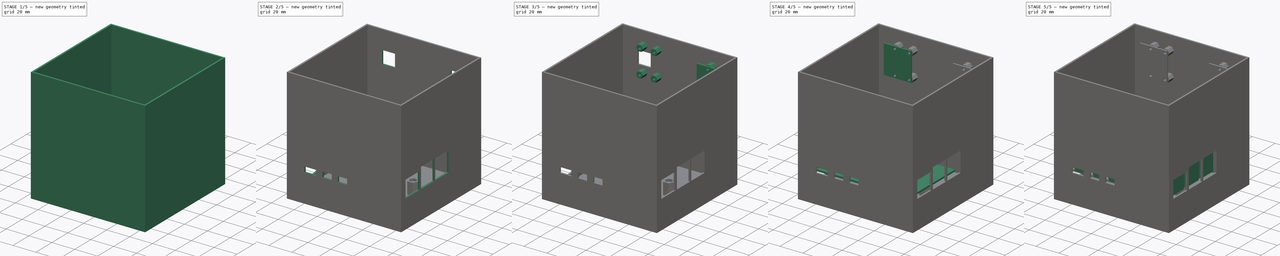
[diagram: build sequence overview — one tinted view per stage of 5, left to right]
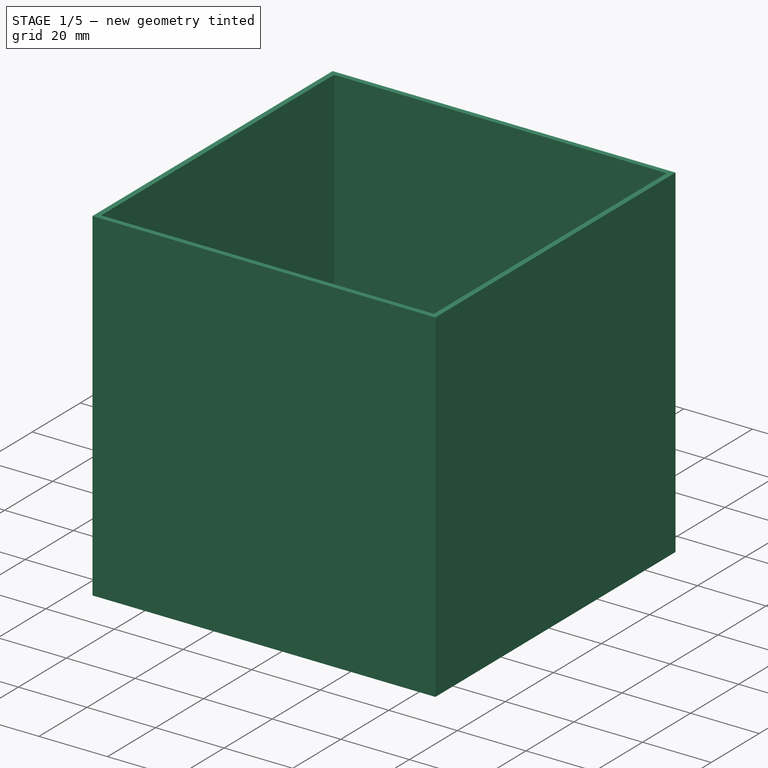
[diagram: stage 1 of 5 — iso view after this stage's code; geometry added in this stage tinted green]
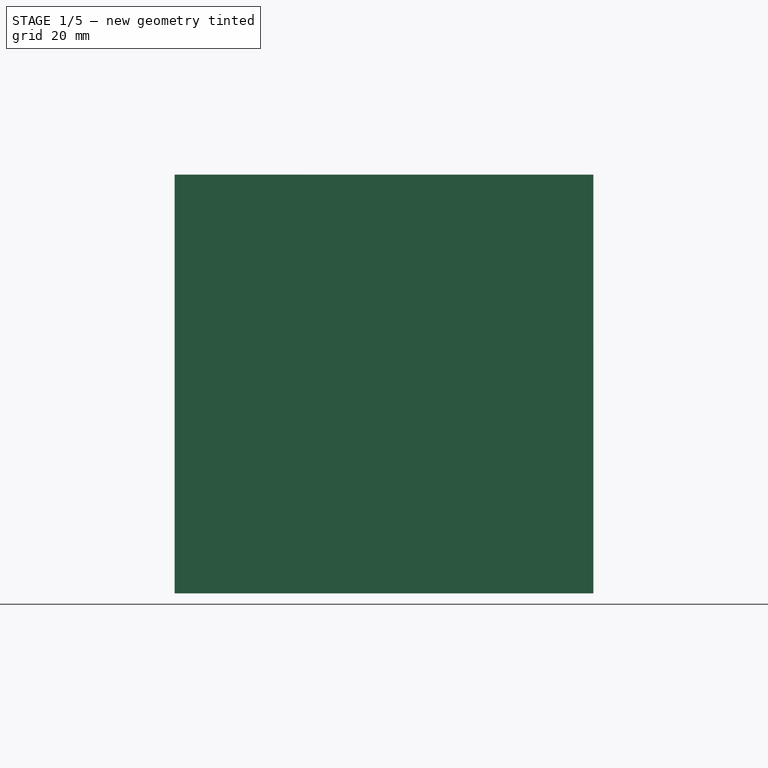
[diagram: stage 1 of 5 — front view after this stage's code; geometry added in this stage tinted green]
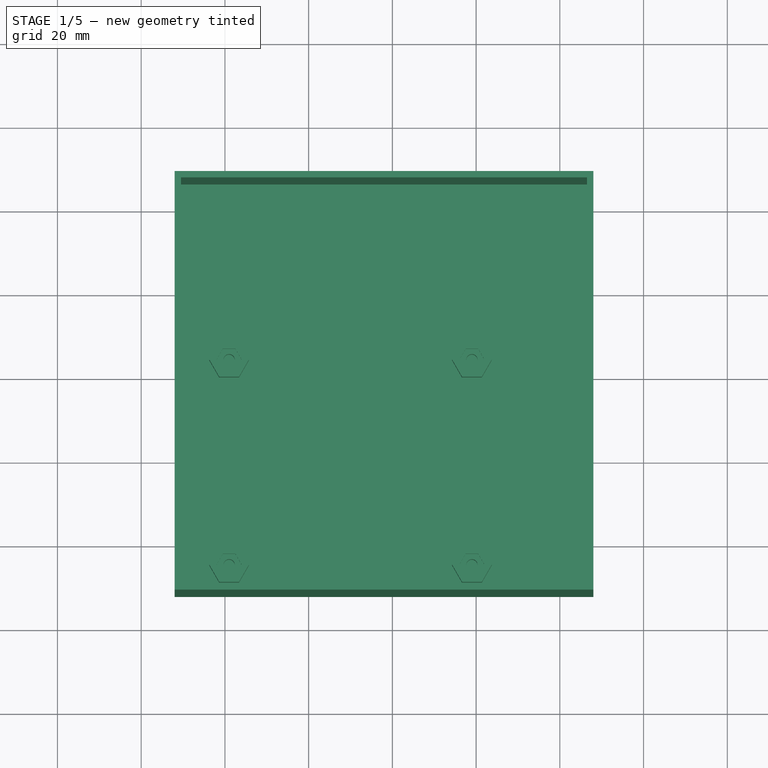
[diagram: stage 1 of 5 — top view after this stage's code; geometry added in this stage tinted green]
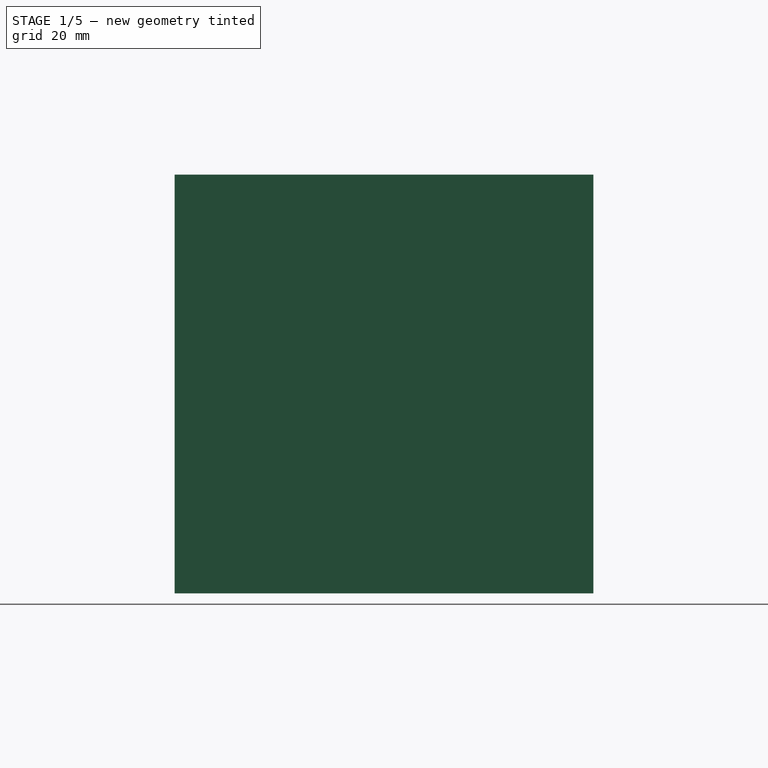
[diagram: stage 1 of 5 — right view after this stage's code; geometry added in this stage tinted green]
FCSTD DOCUMENT  (FreeCAD 0.20R29177 (Git))
Label: PiCase_v1
License: All rights reserved
LicenseURL: http://en.wikipedia.org/wiki/All_rights_reserved
objects: Sketcher::SketchObject×20, PartDesign::Plane×16, PartDesign::Pad×14, PartDesign::Pocket×6, Spreadsheet::Sheet×5, PartDesign::Body×4
note: 80 computed .brp shape members not serialized (recipe doc carries the construction recipe); baked Part::Feature solids carry a one-line shape summary decoded from their .brp

FEATURE [PartDesign::Body] Body002  label="Camera2"
  Group = -> [DatumPlane003,Sketch006,Pad006,DatumPlane006,DatumPlane007,Sketch009,Pad009,Sketch010,Pad010]
  Origin = -> Origin002
  Tip = -> Pad010
FEATURE [Spreadsheet::Sheet] Spreadsheet006  label="fix"
  cells = A1=nut_width; B1(nut_width)=5; A2=nut_height; B2(nut_height)=2; A3=space_height; B3(space_height)=12; A4=space_width; B4(space_width)=4; A5=tol; B5(tol)=0.1; A6=bolt_length; B6(bolt_length)=7; A7=space_length; B7(space_length)=7; A8=nutm2_width; B8(nutm2_width)=4; A9=nutm2_height; B9(nutm2_height)=1.5; A10=boltm2dia; B10(boltm2dia)=2; A11=boltm25dia; B11(boltm25dia)=2.5
FEATURE [PartDesign::Plane] DatumPlane008  label="Plane_case_bottom"
  AttachmentOffset = pos=(0,0,-25.5) rot=(0,0,1;0rad)
  Length = 120
  MapMode = 5
  Placement = pos=(0,0,-25.5) rot=(0,0,1;0rad)
  ResizeMode = 0
  Support = -> [XY_Plane003]
  Width = 120
  expr: .AttachmentOffset.Base.z = -(<<board>>.height + <<case>>.wall + <<case>>.nut_height + <<fix>>.space_height)
FEATURE [Sketcher::SketchObject] Sketch011  label="Sketch_case_bottom"
  FullyConstrained = true
  MapMode = 5
  Placement = pos=(0,0,-25.5) rot=(0,0,1;0rad)
  Support = -> [DatumPlane008]
  expr: Constraints[10] = <<board>>.length
  expr: Constraints[11] = <<board>>.width
  expr: Constraints[20] = <<case>>.length
  expr: Constraints[21] = <<case>>.width
  expr: Constraints[22] = <<board>>.usbc_offset + <<case>>.io_recess + <<case>>.wall
  expr: Constraints[23] = <<board>>.usba_offset + <<case>>.io_recess + <<case>>.wall
  sketch-geometry (9):
    g0: LineSegment StartX=-42.5 StartY=-28 StartZ=0 EndX=-42.5 EndY=28 EndZ=0
    g1: LineSegment StartX=-42.5 StartY=28 StartZ=0 EndX=42.5 EndY=28 EndZ=0
    g2: LineSegment StartX=42.5 StartY=28 StartZ=0 EndX=42.5 EndY=-28 EndZ=0
    g3: LineSegment StartX=42.5 StartY=-28 StartZ=0 EndX=-42.5 EndY=-28 EndZ=0
    g4: GeomPoint X=0 Y=0 Z=0
    g5: LineSegment StartX=-52 StartY=68 StartZ=0 EndX=48 EndY=68 EndZ=0
    g6: LineSegment StartX=48 StartY=68 StartZ=0 EndX=48 EndY=-32 EndZ=0
    g7: LineSegment StartX=48 StartY=-32 StartZ=0 EndX=-52 EndY=-32 EndZ=0
    g8: LineSegment StartX=-52 StartY=-32 StartZ=0 EndX=-52 EndY=68 EndZ=0
  constraints (28):
    c: Coincident(g0,g1)
    c: Coincident(g1,g2)
    c: Coincident(g2,g3)
    c: Coincident(g3,g0)
    c: Horizontal(g1)
    c: Horizontal(g3)
    c: Vertical(g0)
    c: Vertical(g2)
    c: Symmetric(g1,g0,g4)
    c: Coincident(g4,g-1)
    c: DistanceX(g1,g1) = 85
    c: DistanceY(g0,g0) = 56
    c: Coincident(g5,g6)
    c: Coincident(g6,g7)
    c: Coincident(g7,g8)
    c: Coincident(g8,g5)
    c: Horizontal(g5)
    c: Horizontal(g7)
    c: Vertical(g6)
    c: Vertical(g8)
    c: DistanceX(g5,g5) = 100
    c: DistanceY(g8,g8) = 100
    c: DistanceY(g6,g2) = 4
    c: DistanceX(g2,g6) = 5.5
    c: DistanceX(g4,g6) = 48  'orgin_bigio_case'
    c: DistanceY(g7,g4) = 32  'origin_smallio_case'
    c: DistanceX(g7,g4) = 52  'origin_sd_case'
    c: DistanceY(g4,g5) = 68  'origin_lens_cutout'
FEATURE [PartDesign::Pad] Pad011  label="Pad_case_bottom"
  Direction = (0,0,1)
  Length = 100
  Length2 = 10
  Placement = pos=(0,0,-25.5) rot=(0,0,1;0rad)
  Profile = -> Sketch011
  ReferenceAxis = -> Sketch011 [N_Axis]
  Refine = true
  Type = 0
  expr: Length = <<case>>.height
FEATURE [Sketcher::SketchObject] Sketch012  label="Sketch_case_pocket"
  FullyConstrained = true
  MapMode = 5
  Placement = pos=(0,0,74.5) rot=(0,0,1;0rad)
  Support = -> [Pad011]
  expr: Constraints[18] = <<board>>.length
  expr: Constraints[19] = <<case>>.length
  expr: Constraints[20] = <<case>>.width
  expr: Constraints[21] = <<board>>.width
  expr: Constraints[22] = <<board>>.usbc_offset + <<case>>.wall + <<case>>.io_recess
  expr: Constraints[23] = <<board>>.usba_offset + <<case>>.wall + <<case>>.io_recess
  expr: Constraints[32] = <<case>>.length - 2 * <<case>>.wall
  expr: Constraints[33] = <<case>>.width - 2 * <<case>>.wall
  expr: Constraints[34] = <<case>>.wall
  expr: Constraints[35] = <<case>>.wall
  sketch-geometry (13):
    g0: LineSegment StartX=-42.5 StartY=-28 StartZ=0 EndX=-42.5 EndY=28 EndZ=0
    g1: LineSegment StartX=-42.5 StartY=28 StartZ=0 EndX=42.5 EndY=28 EndZ=0
    g2: LineSegment StartX=42.5 StartY=28 StartZ=0 EndX=42.5 EndY=-28 EndZ=0
    g3: LineSegment StartX=42.5 StartY=-28 StartZ=0 EndX=-42.5 EndY=-28 EndZ=0
    g4: GeomPoint X=0 Y=0 Z=0
    g5: LineSegment StartX=-52 StartY=68 StartZ=0 EndX=48 EndY=68 EndZ=0
    g6: LineSegment StartX=48 StartY=68 StartZ=0 EndX=48 EndY=-32 EndZ=0
    g7: LineSegment StartX=48 StartY=-32 StartZ=0 EndX=-52 EndY=-32 EndZ=0
    g8: LineSegment StartX=-52 StartY=-32 StartZ=0 EndX=-52 EndY=68 EndZ=0
    g9: LineSegment StartX=-50.5 StartY=66.5 StartZ=0 EndX=46.5 EndY=66.5 EndZ=0
    g10: LineSegment StartX=46.5 StartY=66.5 StartZ=0 EndX=46.5 EndY=-30.5 EndZ=0
    g11: LineSegment StartX=46.5 StartY=-30.5 StartZ=0 EndX=-50.5 EndY=-30.5 EndZ=0
    g12: LineSegment StartX=-50.5 StartY=-30.5 StartZ=0 EndX=-50.5 EndY=66.5 EndZ=0
  constraints (36):
    c: Coincident(g0,g1)
    c: Coincident(g1,g2)
    c: Coincident(g2,g3)
    c: Coincident(g3,g0)
    c: Horizontal(g1)
    c: Horizontal(g3)
    c: Vertical(g0)
    c: Vertical(g2)
    c: Symmetric(g1,g0,g4)
    c: Coincident(g4,g-1)
    c: Coincident(g5,g6)
    c: Coincident(g6,g7)
    c: Coincident(g7,g8)
    c: Coincident(g8,g5)
    c: Horizontal(g5)
    c: Horizontal(g7)
    c: Vertical(g6)
    c: Vertical(g8)
    c: DistanceX(g1,g1) = 85
    c: DistanceX(g5,g5) = 100
    c: DistanceY(g8,g8) = 100
    c: DistanceY(g0,g0) = 56
    c: DistanceY(g6,g2) = 4
    c: DistanceX(g2,g6) = 5.5
    c: Coincident(g9,g10)
    c: Coincident(g10,g11)
    c: Coincident(g11,g12)
    c: Coincident(g12,g9)
    c: Horizontal(g9)
    c: Horizontal(g11)
    c: Vertical(g10)
    c: Vertical(g12)
    c: DistanceX(g9,g9) = 97
    c: DistanceY(g12,g12) = 97
    c: DistanceX(g5,g9) = 1.5
    c: DistanceY(g9,g5) = 1.5
FEATURE [PartDesign::Pocket] Pocket  label="Pocket_case"
  BaseFeature = -> Pad011
  Direction = (0,0,-1)
  Length = 98.5
  Length2 = 5
  Placement = pos=(0,0,-25.5) rot=(0,0,1;0rad)
  Profile = -> Sketch012
  ReferenceAxis = -> Sketch012 [N_Axis]
  Refine = true
  Type = 0
  expr: Length = <<case>>.height - <<case>>.wall
FEATURE [PartDesign::Plane] DatumPlane009  label="Plane_case_bottom_inside"
  AttachmentOffset = pos=(0,0,-24) rot=(0,0,1;0rad)
  Length = 120
  MapMode = 5
  Placement = pos=(0,0,-24) rot=(0,0,1;0rad)
  ResizeMode = 0
  Support = -> [XY_Plane003]
  Width = 120
  expr: .AttachmentOffset.Base.z = -(<<board>>.height + <<case>>.nut_height + <<fix>>.space_height)
FEATURE [Sketcher::SketchObject] Sketch013  label="Sketch_nut_housing"
  FullyConstrained = true
  MapMode = 5
  Placement = pos=(0,0,-24) rot=(0,0,1;0rad)
  Support = -> [DatumPlane009]
  expr: Constraints[10] = <<board>>.length
  expr: Constraints[111] = <<fix>>.nut_width + 2 * <<case>>.wall + 2 * <<case>>.tol
  expr: Constraints[11] = <<board>>.width
  expr: Constraints[20] = <<board>>.hole_length
  expr: Constraints[21] = <<board>>.hole_width
  expr: Constraints[22] = <<board>>.hole_spacing
  expr: Constraints[23] = <<board>>.hole_spacing
  expr: Constraints[31] = <<board>>.hole_diam
  sketch-geometry (41):
    g0: LineSegment StartX=-42.5 StartY=-28 StartZ=0 EndX=-42.5 EndY=28 EndZ=0
    g1: LineSegment StartX=-42.5 StartY=28 StartZ=0 EndX=42.5 EndY=28 EndZ=0
    g2: LineSegment StartX=42.5 StartY=28 StartZ=0 EndX=42.5 EndY=-28 EndZ=0
    g3: LineSegment StartX=42.5 StartY=-28 StartZ=0 EndX=-42.5 EndY=-28 EndZ=0
    g4: GeomPoint X=0 Y=0 Z=0
    g5: LineSegment StartX=-39 StartY=24.5 StartZ=0 EndX=19 EndY=24.5 EndZ=0
    g6: LineSegment StartX=19 StartY=24.5 StartZ=0 EndX=19 EndY=-24.5 EndZ=0
    g7: LineSegment StartX=19 StartY=-24.5 StartZ=0 EndX=-39 EndY=-24.5 EndZ=0
    g8: LineSegment StartX=-39 StartY=-24.5 StartZ=0 EndX=-39 EndY=24.5 EndZ=0
    g9: Circle CenterX=-39 CenterY=24.5 CenterZ=0 NormalX=0 NormalY=0 NormalZ=1 AngleXU=0 Radius=1.35
    g10: Circle CenterX=19 CenterY=24.5 CenterZ=0 NormalX=0 NormalY=0 NormalZ=1 AngleXU=0 Radius=1.35
    g11: Circle CenterX=19 CenterY=-24.5 CenterZ=0 NormalX=0 NormalY=0 NormalZ=1 AngleXU=0 Radius=1.35
    g12: Circle CenterX=-39 CenterY=-24.5 CenterZ=0 NormalX=0 NormalY=0 NormalZ=1 AngleXU=0 Radius=1.35
    g13: LineSegment StartX=-36.6329 StartY=20.4 StartZ=0 EndX=-34.2657 EndY=24.5 EndZ=0
    g14: LineSegment StartX=-34.2657 StartY=24.5 StartZ=0 EndX=-36.6329 EndY=28.6 EndZ=0
    g15: LineSegment StartX=-36.6329 StartY=28.6 StartZ=0 EndX=-41.3671 EndY=28.6 EndZ=0
    g16: LineSegment StartX=-41.3671 StartY=28.6 StartZ=0 EndX=-43.7343 EndY=24.5 EndZ=0
    g17: LineSegment StartX=-43.7343 StartY=24.5 StartZ=0 EndX=-41.3671 EndY=20.4 EndZ=0
    g18: LineSegment StartX=-41.3671 StartY=20.4 StartZ=0 EndX=-36.6329 EndY=20.4 EndZ=0
    g19: Circle CenterX=-39 CenterY=24.5 CenterZ=0 NormalX=0 NormalY=0 NormalZ=1 AngleXU=0 Radius=4.73427
    g20: LineSegment StartX=16.6329 StartY=20.4 StartZ=0 EndX=21.3671 EndY=20.4 EndZ=0
    g21: LineSegment StartX=21.3671 StartY=20.4 StartZ=0 EndX=23.7343 EndY=24.5 EndZ=0
    g22: LineSegment StartX=23.7343 StartY=24.5 StartZ=0 EndX=21.3671 EndY=28.6 EndZ=0
    g23: LineSegment StartX=21.3671 StartY=28.6 StartZ=0 EndX=16.6329 EndY=28.6 EndZ=0
    g24: LineSegment StartX=16.6329 StartY=28.6 StartZ=0 EndX=14.2657 EndY=24.5 EndZ=0
    g25: LineSegment StartX=14.2657 StartY=24.5 StartZ=0 EndX=16.6329 EndY=20.4 EndZ=0
    g26: Circle CenterX=19 CenterY=24.5 CenterZ=0 NormalX=0 NormalY=0 NormalZ=1 AngleXU=0 Radius=4.73427
    g27: LineSegment StartX=23.7343 StartY=-24.5 StartZ=0 EndX=21.3671 EndY=-20.4 EndZ=0
    g28: LineSegment StartX=21.3671 StartY=-20.4 StartZ=0 EndX=16.6329 EndY=-20.4 EndZ=0
    g29: LineSegment StartX=16.6329 StartY=-20.4 StartZ=0 EndX=14.2657 EndY=-24.5 EndZ=0
    g30: LineSegment StartX=14.2657 StartY=-24.5 StartZ=0 EndX=16.6329 EndY=-28.6 EndZ=0
    g31: LineSegment StartX=16.6329 StartY=-28.6 StartZ=0 EndX=21.3671 EndY=-28.6 EndZ=0
    g32: LineSegment StartX=21.3671 StartY=-28.6 StartZ=0 EndX=23.7343 EndY=-24.5 EndZ=0
    g33: Circle CenterX=19 CenterY=-24.5 CenterZ=0 NormalX=0 NormalY=0 NormalZ=1 AngleXU=0 Radius=4.73427
    g34: LineSegment StartX=-41.3671 StartY=-20.4 StartZ=0 EndX=-43.7343 EndY=-24.5 EndZ=0
    g35: LineSegment StartX=-43.7343 StartY=-24.5 StartZ=0 EndX=-41.3671 EndY=-28.6 EndZ=0
    g36: LineSegment StartX=-41.3671 StartY=-28.6 StartZ=0 EndX=-36.6329 EndY=-28.6 EndZ=0
    g37: LineSegment StartX=-36.6329 StartY=-28.6 StartZ=0 EndX=-34.2657 EndY=-24.5 EndZ=0
    g38: LineSegment StartX=-34.2657 StartY=-24.5 StartZ=0 EndX=-36.6329 EndY=-20.4 EndZ=0
    g39: LineSegment StartX=-36.6329 StartY=-20.4 StartZ=0 EndX=-41.3671 EndY=-20.4 EndZ=0
    g40: Circle CenterX=-39 CenterY=-24.5 CenterZ=0 NormalX=0 NormalY=0 NormalZ=1 AngleXU=0 Radius=4.73427
  constraints (96):
    c: Coincident(g0,g1)
    c: Coincident(g1,g2)
    c: Coincident(g2,g3)
    c: Coincident(g3,g0)
    c: Horizontal(g1)
    c: Horizontal(g3)
    c: Vertical(g0)
    c: Vertical(g2)
    c: Symmetric(g1,g0,g4)
    c: Coincident(g4,g-1)
    c: DistanceX(g1,g1) = 85
    c: DistanceY(g0,g0) = 56
    c: Coincident(g5,g6)
    c: Coincident(g6,g7)
    c: Coincident(g7,g8)
    c: Coincident(g8,g5)
    c: Horizontal(g5)
    c: Horizontal(g7)
    c: Vertical(g6)
    c: Vertical(g8)
    c: DistanceX(g5,g5) = 58
    c: DistanceY(g8,g8) = 49
    c: DistanceX(g0,g5) = 3.5
    c: DistanceY(g5,g0) = 3.5
    c: Coincident(g9,g5)
    c: Coincident(g10,g5)
    c: Coincident(g11,g6)
    c: Coincident(g12,g7)
    c: Equal(g12,g9)
    c: Equal(g12,g10)
    c: Equal(g12,g11)
    c: Diameter(g12) = 2.7
    c: Coincident(g13,g14)
    c: Coincident(g14,g15)
    c: Coincident(g15,g16)
    c: Coincident(g16,g17)
    c: Coincident(g17,g18)
    c: Coincident(g18,g13)
    c: Equal(g13, g14-g18) x5
    c: PointOnObject(g13,g19)
    c: PointOnObject(g14,g19)
    c: PointOnObject(g15,g19)
    c: PointOnObject(g16,g19)
    c: PointOnObject(g17,g19)
    c: PointOnObject(g18,g19)
    c: Coincident(g19,g9)
    c: Coincident(g20,g21)
    c: Coincident(g21,g22)
    c: Coincident(g22,g23)
    c: Coincident(g23,g24)
    c: Coincident(g24,g25)
    c: Coincident(g25,g20)
    c: Equal(g20, g21-g25) x5
    c: PointOnObject(g20,g26)
    c: PointOnObject(g21,g26)
    c: PointOnObject(g22,g26)
    c: PointOnObject(g23,g26)
    c: PointOnObject(g24,g26)
    c: PointOnObject(g25,g26)
    c: Coincident(g26,g10)
    c: Coincident(g27,g28)
    c: Coincident(g28,g29)
    c: Coincident(g29,g30)
    c: Coincident(g30,g31)
    c: Coincident(g31,g32)
    c: Coincident(g32,g27)
    c: Equal(g27, g28-g32) x5
    c: PointOnObject(g27,g33)
    c: PointOnObject(g28,g33)
    c: PointOnObject(g29,g33)
    c: PointOnObject(g30,g33)
    c: PointOnObject(g31,g33)
    c: PointOnObject(g32,g33)
    c: Coincident(g33,g11)
    c: Coincident(g34,g35)
    c: Coincident(g35,g36)
    c: Coincident(g36,g37)
    c: Coincident(g37,g38)
    c: Coincident(g38,g39)
    c: Coincident(g39,g34)
    c: Equal(g34, g35-g39) x5
    c: PointOnObject(g34,g40)
    c: PointOnObject(g35,g40)
    c: PointOnObject(g36,g40)
    c: PointOnObject(g37,g40)
    c: PointOnObject(g38,g40)
    c: PointOnObject(g39,g40)
    c: Coincident(g40,g12)
    c: Equal(g40,g19)
    c: Equal(g19,g26)
    c: Equal(g26,g33)
    c: Horizontal(g39)
    c: Horizontal(g28)
    c: Horizontal(g20)
    c: Horizontal(g18)
    c: DistanceY(g31,g27) = 8.2
FEATURE [PartDesign::Pad] Pad012  label="Pad_nut_housing"
  BaseFeature = -> Pocket
  Direction = (0,0,1)
  Length = 10.5
  Length2 = 10
  Placement = pos=(0,0,-25.5) rot=(0,0,1;0rad)
  Profile = -> Sketch013
  ReferenceAxis = -> Sketch013 [N_Axis]
  Refine = true
  Type = 0
  expr: Length = <<case>>.nut_height
FEATURE [PartDesign::Plane] DatumPlane010  label="Plane_nut_recess"
  AttachmentOffset = pos=(0,0,-13.5) rot=(0,0,1;0rad)
  Length = 120
  MapMode = 5
  Placement = pos=(0,0,-13.5) rot=(0,0,1;0rad)
  ResizeMode = 0
  Support = -> [XY_Plane003]
  Width = 120
  expr: .AttachmentOffset.Base.z = -(<<board>>.height + <<fix>>.space_height)
FEATURE [Sketcher::SketchObject] Sketch014  label="Sketch_nut_recess"
  FullyConstrained = true
  MapMode = 5
  Placement = pos=(0,0,-13.5) rot=(0,0,1;0rad)
  Support = -> [DatumPlane010]
  expr: Constraints[103] = <<fix>>.nut_width + 2 * <<fix>>.tol
  expr: Constraints[18] = <<board>>.hole_spacing
  expr: Constraints[19] = <<board>>.width
  expr: Constraints[20] = <<board>>.hole_width
  expr: Constraints[21] = <<board>>.hole_spacing
  expr: Constraints[22] = <<board>>.length
  expr: Constraints[23] = <<board>>.hole_length
  sketch-geometry (37):
    g0: LineSegment StartX=-42.5 StartY=-28 StartZ=0 EndX=-42.5 EndY=28 EndZ=0
    g1: LineSegment StartX=-42.5 StartY=28 StartZ=0 EndX=42.5 EndY=28 EndZ=0
    g2: LineSegment StartX=42.5 StartY=28 StartZ=0 EndX=42.5 EndY=-28 EndZ=0
    g3: LineSegment StartX=42.5 StartY=-28 StartZ=0 EndX=-42.5 EndY=-28 EndZ=0
    g4: GeomPoint X=0 Y=0 Z=0
    g5: LineSegment StartX=-39 StartY=24.5 StartZ=0 EndX=19 EndY=24.5 EndZ=0
    g6: LineSegment StartX=19 StartY=24.5 StartZ=0 EndX=19 EndY=-24.5 EndZ=0
    g7: LineSegment StartX=19 StartY=-24.5 StartZ=0 EndX=-39 EndY=-24.5 EndZ=0
    g8: LineSegment StartX=-39 StartY=-24.5 StartZ=0 EndX=-39 EndY=24.5 EndZ=0
    g9: LineSegment StartX=-35.9978 StartY=24.5 StartZ=0 EndX=-37.4989 EndY=27.1 EndZ=0
    g10: LineSegment StartX=-37.4989 StartY=27.1 StartZ=0 EndX=-40.5011 EndY=27.1 EndZ=0
    g11: LineSegment StartX=-40.5011 StartY=27.1 StartZ=0 EndX=-42.0022 EndY=24.5 EndZ=0
    g12: LineSegment StartX=-42.0022 StartY=24.5 StartZ=0 EndX=-40.5011 EndY=21.9 EndZ=0
    g13: LineSegment StartX=-40.5011 StartY=21.9 StartZ=0 EndX=-37.4989 EndY=21.9 EndZ=0
    g14: LineSegment StartX=-37.4989 StartY=21.9 StartZ=0 EndX=-35.9978 EndY=24.5 EndZ=0
    g15: Circle CenterX=-39 CenterY=24.5 CenterZ=0 NormalX=0 NormalY=0 NormalZ=1 AngleXU=0 Radius=3.00222
    g16: LineSegment StartX=22.0022 StartY=24.5 StartZ=0 EndX=20.5011 EndY=27.1 EndZ=0
    g17: LineSegment StartX=20.5011 StartY=27.1 StartZ=0 EndX=17.4989 EndY=27.1 EndZ=0
    g18: LineSegment StartX=17.4989 StartY=27.1 StartZ=0 EndX=15.9978 EndY=24.5 EndZ=0
    g19: LineSegment StartX=15.9978 StartY=24.5 StartZ=0 EndX=17.4989 EndY=21.9 EndZ=0
    g20: LineSegment StartX=17.4989 StartY=21.9 StartZ=0 EndX=20.5011 EndY=21.9 EndZ=0
    g21: LineSegment StartX=20.5011 StartY=21.9 StartZ=0 EndX=22.0022 EndY=24.5 EndZ=0
    g22: Circle CenterX=19 CenterY=24.5 CenterZ=0 NormalX=0 NormalY=0 NormalZ=1 AngleXU=0 Radius=3.00222
    g23: LineSegment StartX=-35.9978 StartY=-24.5 StartZ=0 EndX=-37.4989 EndY=-21.9 EndZ=0
    g24: LineSegment StartX=-37.4989 StartY=-21.9 StartZ=0 EndX=-40.5011 EndY=-21.9 EndZ=0
    g25: LineSegment StartX=-40.5011 StartY=-21.9 StartZ=0 EndX=-42.0022 EndY=-24.5 EndZ=0
    g26: LineSegment StartX=-42.0022 StartY=-24.5 StartZ=0 EndX=-40.5011 EndY=-27.1 EndZ=0
    g27: LineSegment StartX=-40.5011 StartY=-27.1 StartZ=0 EndX=-37.4989 EndY=-27.1 EndZ=0
    g28: LineSegment StartX=-37.4989 StartY=-27.1 StartZ=0 EndX=-35.9978 EndY=-24.5 EndZ=0
    g29: Circle CenterX=-39 CenterY=-24.5 CenterZ=0 NormalX=0 NormalY=0 NormalZ=1 AngleXU=0 Radius=3.00222
    g30: LineSegment StartX=17.4989 StartY=-21.9 StartZ=0 EndX=15.9978 EndY=-24.5 EndZ=0
    g31: LineSegment StartX=15.9978 StartY=-24.5 StartZ=0 EndX=17.4989 EndY=-27.1 EndZ=0
    g32: LineSegment StartX=17.4989 StartY=-27.1 StartZ=0 EndX=20.5011 EndY=-27.1 EndZ=0
    g33: LineSegment StartX=20.5011 StartY=-27.1 StartZ=0 EndX=22.0022 EndY=-24.5 EndZ=0
    g34: LineSegment StartX=22.0022 StartY=-24.5 StartZ=0 EndX=20.5011 EndY=-21.9 EndZ=0
    g35: LineSegment StartX=20.5011 StartY=-21.9 StartZ=0 EndX=17.4989 EndY=-21.9 EndZ=0
    g36: Circle CenterX=19 CenterY=-24.5 CenterZ=0 NormalX=0 NormalY=0 NormalZ=1 AngleXU=0 Radius=3.00222
  constraints (88):
    c: Coincident(g0,g1)
    c: Coincident(g1,g2)
    c: Coincident(g2,g3)
    c: Coincident(g3,g0)
    c: Horizontal(g1)
    c: Horizontal(g3)
    c: Vertical(g0)
    c: Vertical(g2)
    c: Symmetric(g1,g0,g4)
    c: Coincident(g4,g-1)
    c: Coincident(g5,g6)
    c: Coincident(g6,g7)
    c: Coincident(g7,g8)
    c: Coincident(g8,g5)
    c: Horizontal(g5)
    c: Horizontal(g7)
    c: Vertical(g6)
    c: Vertical(g8)
    c: DistanceY(g5,g0) = 3.5
    c: DistanceY(g0,g0) = 56
    c: DistanceY(g8,g8) = 49
    c: DistanceX(g0,g5) = 3.5
    c: DistanceX(g1,g1) = 85
    c: DistanceX(g5,g5) = 58
    c: Coincident(g9,g10)
    c: Coincident(g10,g11)
    c: Coincident(g11,g12)
    c: Coincident(g12,g13)
    c: Coincident(g13,g14)
    c: Coincident(g14,g9)
    c: Equal(g9, g10-g14) x5
    c: PointOnObject(g9,g15)
    c: PointOnObject(g10,g15)
    c: PointOnObject(g11,g15)
    c: PointOnObject(g12,g15)
    c: PointOnObject(g13,g15)
    c: PointOnObject(g14,g15)
    c: Coincident(g15,g5)
    c: Coincident(g16,g17)
    c: Coincident(g17,g18)
    c: Coincident(g18,g19)
    c: Coincident(g19,g20)
    c: Coincident(g20,g21)
    c: Coincident(g21,g16)
    c: Equal(g16, g17-g21) x5
    c: PointOnObject(g16,g22)
    c: PointOnObject(g17,g22)
    c: PointOnObject(g18,g22)
    c: PointOnObject(g19,g22)
    c: PointOnObject(g20,g22)
    c: PointOnObject(g21,g22)
    c: Coincident(g22,g5)
    c: Coincident(g23,g24)
    c: Coincident(g24,g25)
    c: Coincident(g25,g26)
    c: Coincident(g26,g27)
    c: Coincident(g27,g28)
    c: Coincident(g28,g23)
    c: Equal(g23, g24-g28) x5
    c: PointOnObject(g23,g29)
    c: PointOnObject(g24,g29)
    c: PointOnObject(g25,g29)
    c: PointOnObject(g26,g29)
    c: PointOnObject(g27,g29)
    c: PointOnObject(g28,g29)
    c: Coincident(g29,g7)
    c: Coincident(g30,g31)
    c: Coincident(g31,g32)
    c: Coincident(g32,g33)
    c: Coincident(g33,g34)
    c: Coincident(g34,g35)
    c: Coincident(g35,g30)
    c: Equal(g30, g31-g35) x5
    c: PointOnObject(g30,g36)
    c: PointOnObject(g31,g36)
    c: PointOnObject(g32,g36)
    c: PointOnObject(g33,g36)
    c: PointOnObject(g34,g36)
    c: PointOnObject(g35,g36)
    c: Coincident(g36,g6)
    c: Equal(g36,g29)
    c: Equal(g29,g15)
    c: Equal(g15,g22)
    c: Horizontal(g20)
    c: Horizontal(g13)
    c: Horizontal(g32)
    c: Horizontal(g27)
    c: DistanceY(g26,g24) = 5.2
FEATURE [PartDesign::Pocket] Pocket001  label="Pocket_nut_recess"
  BaseFeature = -> Pad012
  Direction = (0,0,-1)
  Length = 2.2
  Length2 = 5
  Placement = pos=(0,0,-25.5) rot=(0,0,1;0rad)
  Profile = -> Sketch014
  ReferenceAxis = -> Sketch014 [N_Axis]
  Refine = true
  Type = 0
  expr: Length = <<fix>>.nut_height + 2 * <<fix>>.tol
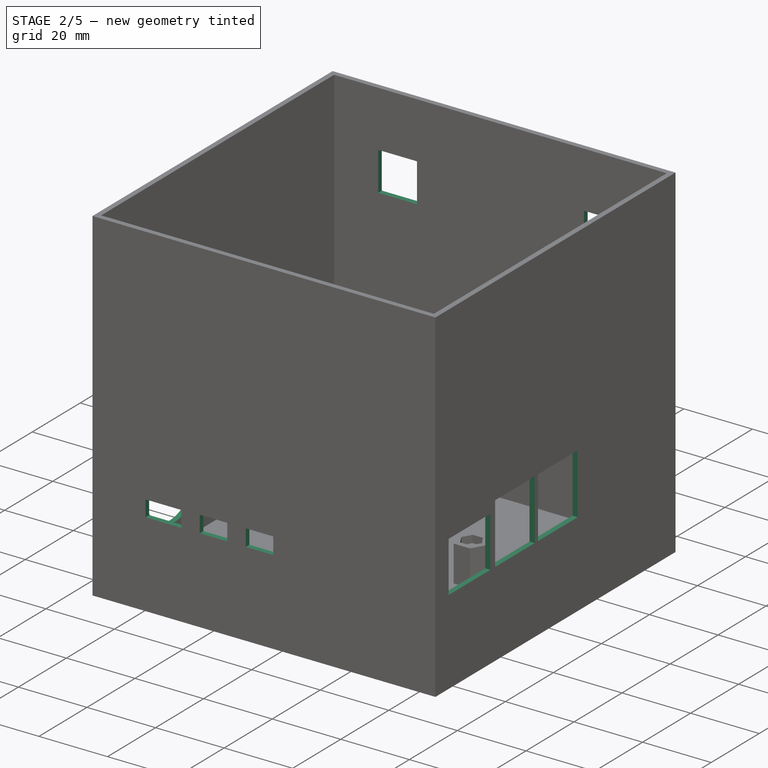
[diagram: stage 2 of 5 — iso view after this stage's code; geometry added in this stage tinted green]
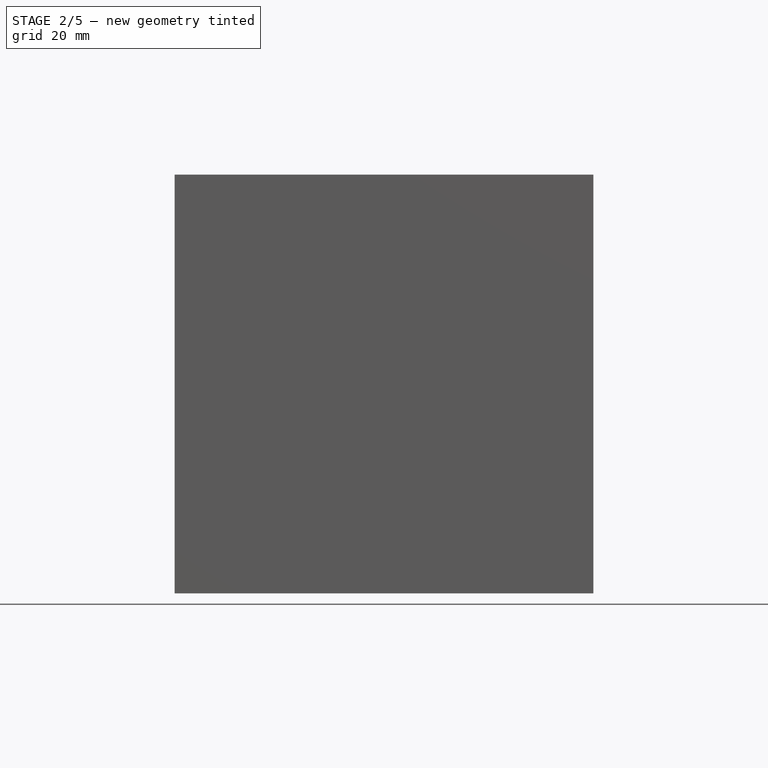
[diagram: stage 2 of 5 — front view after this stage's code; geometry added in this stage tinted green]
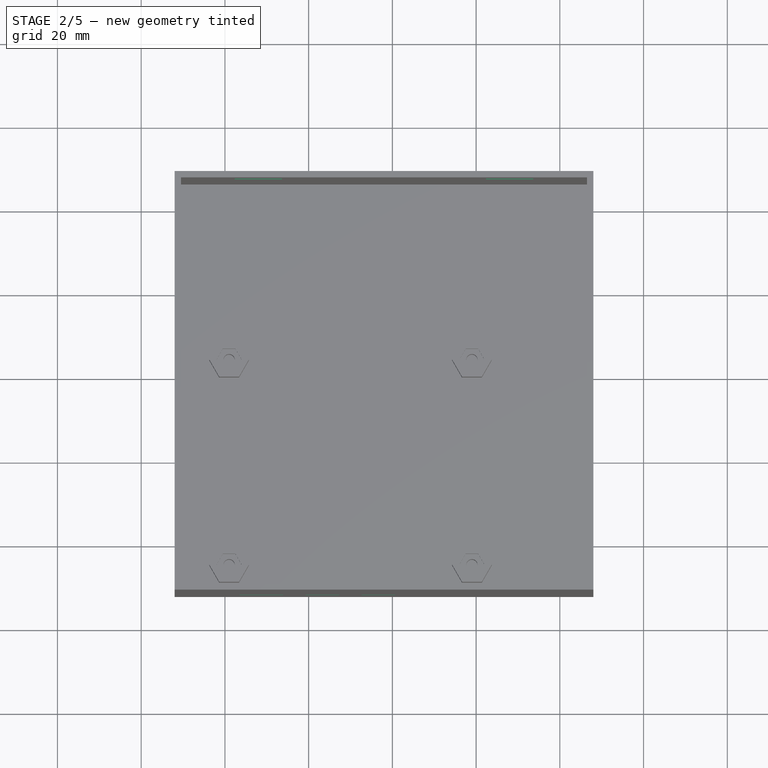
[diagram: stage 2 of 5 — top view after this stage's code; geometry added in this stage tinted green]
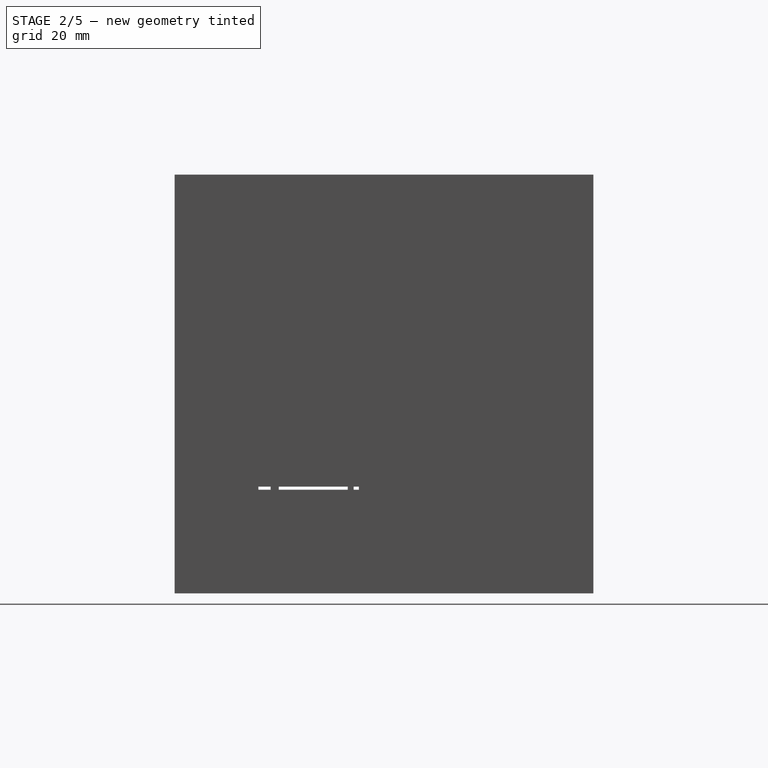
[diagram: stage 2 of 5 — right view after this stage's code; geometry added in this stage tinted green]
FEATURE [PartDesign::Plane] DatumPlane011  label="Plane_bigio_cutout"
  AttachmentOffset = pos=(0,0,48) rot=(0,0,1;0rad)
  Length = 120
  MapMode = 5
  Placement = pos=(48,-1.07e-14,1.07e-14) rot=(0.57735,0.57735,0.57735;2.0944rad)
  ResizeMode = 0
  Support = -> [YZ_Plane003]
  Width = 120
  expr: .AttachmentOffset.Base.z = <<Sketch_case_bottom>>.Constraints.orgin_bigio_case
FEATURE [Sketcher::SketchObject] Sketch015  label="Sketch_bigio_cutout"
  FullyConstrained = true
  MapMode = 5
  Placement = pos=(48,-1.07e-14,1.07e-14) rot=(0.57735,0.57735,0.57735;2.0944rad)
  Support = -> [DatumPlane011]
  expr: Constraints[2] = <<board>>.width
  expr: Constraints[30] = <<io>>.rj45_width + <<case>>.wall
  expr: Constraints[31] = <<io>>.rj45_height + <<case>>.wall
  expr: Constraints[32] = 0.5 * <<case>>.wall
  expr: Constraints[33] = <<board>>.rj45_placement
  expr: Constraints[34] = <<board>>.usba_placement1
  expr: Constraints[35] = <<board>>.usba_placement2
  expr: Constraints[36] = 0.5 * <<case>>.wall
  expr: Constraints[37] = 0.5 * <<case>>.wall
  expr: Constraints[38] = <<io>>.usba_height + <<case>>.wall
  expr: Constraints[39] = <<io>>.usba_height + <<case>>.wall
  expr: Constraints[40] = <<io>>.usba_width + <<case>>.wall
  expr: Constraints[41] = <<io>>.usba_width + <<case>>.wall
  sketch-geometry (16):
    g0: LineSegment StartX=-28 StartY=0 StartZ=0 EndX=28 EndY=0 EndZ=0
    g1: LineSegment StartX=-26.515 StartY=14.05 StartZ=0 EndX=-26.515 EndY=-0.75 EndZ=0
    g2: LineSegment StartX=-26.515 StartY=-0.75 StartZ=0 EndX=-9.085 EndY=-0.75 EndZ=0
    g3: LineSegment StartX=-9.085 StartY=-0.75 StartZ=0 EndX=-9.085 EndY=14.05 EndZ=0
    g4: LineSegment StartX=-9.085 StartY=14.05 StartZ=0 EndX=-26.515 EndY=14.05 EndZ=0
    g5: GeomPoint X=-17.8 Y=6.65 Z=0
    g6: LineSegment StartX=9.35 StartY=16.85 StartZ=0 EndX=9.35 EndY=-0.75 EndZ=0
    g7: LineSegment StartX=9.35 StartY=-0.75 StartZ=0 EndX=-7.15 EndY=-0.75 EndZ=0
    g8: LineSegment StartX=-7.15 StartY=-0.75 StartZ=0 EndX=-7.15 EndY=16.85 EndZ=0
    g9: LineSegment StartX=-7.15 StartY=16.85 StartZ=0 EndX=9.35 EndY=16.85 EndZ=0
    g10: GeomPoint X=1.1 Y=8.05 Z=0
    g11: LineSegment StartX=10.75 StartY=16.85 StartZ=0 EndX=10.75 EndY=-0.75 EndZ=0
    g12: LineSegment StartX=10.75 StartY=-0.75 StartZ=0 EndX=27.25 EndY=-0.75 EndZ=0
    g13: LineSegment StartX=27.25 StartY=-0.75 StartZ=0 EndX=27.25 EndY=16.85 EndZ=0
    g14: LineSegment StartX=27.25 StartY=16.85 StartZ=0 EndX=10.75 EndY=16.85 EndZ=0
    g15: GeomPoint X=19 Y=8.05 Z=0
  constraints (42):
    c: PointOnObject(g0,g-1)
    c: Symmetric(g0,g0,g-1)
    c: DistanceX(g0,g0) = 56
    c: Coincident(g1,g2)
    c: Coincident(g2,g3)
    c: Coincident(g3,g4)
    c: Coincident(g4,g1)
    c: Horizontal(g2)
    c: Horizontal(g4)
    c: Vertical(g1)
    c: Vertical(g3)
    c: Symmetric(g2,g1,g5)
    c: Coincident(g6,g7)
    c: Coincident(g7,g8)
    c: Coincident(g8,g9)
    c: Coincident(g9,g6)
    c: Horizontal(g7)
    c: Horizontal(g9)
    c: Vertical(g6)
    c: Vertical(g8)
    c: Symmetric(g7,g6,g10)
    c: Coincident(g11,g12)
    c: Coincident(g12,g13)
    c: Coincident(g13,g14)
    c: Coincident(g14,g11)
    c: Horizontal(g12)
    c: Horizontal(g14)
    c: Vertical(g11)
    c: Vertical(g13)
    c: Symmetric(g12,g11,g15)
    c: DistanceX(g4,g4) = 17.43
    c: DistanceY(g3,g3) = 14.8
    c: DistanceY(g1,g0) = 0.75
    c: DistanceX(g0,g5) = 10.2
    c: DistanceX(g0,g10) = 29.1
    c: DistanceX(g0,g15) = 47
    c: DistanceY(g7,g-1) = 0.75
    c: DistanceY(g11,g-1) = 0.75
    c: DistanceY(g8,g8) = 17.6
    c: DistanceY(g11,g11) = 17.6
    c: DistanceX(g9,g9) = 16.5
    c: DistanceX(g14,g14) = 16.5
FEATURE [PartDesign::Pocket] Pocket002  label="Pocket_bigio_cutout"
  BaseFeature = -> Pocket001
  Direction = (-1,1e-16,-1e-16)
  Length = 1.5
  Length2 = 5
  Placement = pos=(0,0,-25.5) rot=(0,0,1;0rad)
  Profile = -> Sketch015
  ReferenceAxis = -> Sketch015 [N_Axis]
  Refine = true
  Type = 0
  expr: Length = <<case>>.wall
FEATURE [PartDesign::Plane] DatumPlane012  label="Plane_smallio_cutout"
  AttachmentOffset = pos=(0,0,32) rot=(0,0,1;0rad)
  Length = 120
  MapMode = 5
  Placement = pos=(0,-32,-7.1e-15) rot=(1,0,0;1.5708rad)
  ResizeMode = 0
  Support = -> [XZ_Plane003]
  Width = 120
  expr: .AttachmentOffset.Base.z = <<Sketch_case_bottom>>.Constraints.origin_smallio_case
FEATURE [Sketcher::SketchObject] Sketch016  label="Sketch_smallio_cutout"
  FullyConstrained = true
  MapMode = 5
  Placement = pos=(0,-32,-7.1e-15) rot=(1,0,0;1.5708rad)
  Support = -> [DatumPlane012]
  expr: Constraints[2] = <<board>>.length
  expr: Constraints[32] = <<io>>.hdmi_width + <<case>>.wall
  expr: Constraints[33] = <<io>>.hdmi_height + <<case>>.wall
  expr: Constraints[35] = 0.5 * <<case>>.wall
  expr: Constraints[36] = <<io>>.usbc_width + <<case>>.wall
  expr: Constraints[37] = <<io>>.usbc_height + <<case>>.wall
  expr: Constraints[39] = <<board>>.usbc_placement
  expr: Constraints[40] = <<board>>.hdmi_placement1
  expr: Constraints[41] = <<board>>.hdmi_placement2
  sketch-geometry (16):
    g0: LineSegment StartX=-42.5 StartY=0 StartZ=0 EndX=42.5 EndY=0 EndZ=0
    g1: LineSegment StartX=-36.52 StartY=3.95 StartZ=0 EndX=-36.52 EndY=-0.75 EndZ=0
    g2: LineSegment StartX=-36.52 StartY=-0.75 StartZ=0 EndX=-26.08 EndY=-0.75 EndZ=0
    g3: LineSegment StartX=-26.08 StartY=-0.75 StartZ=0 EndX=-26.08 EndY=3.95 EndZ=0
    g4: LineSegment StartX=-26.08 StartY=3.95 StartZ=0 EndX=-36.52 EndY=3.95 EndZ=0
    g5: GeomPoint X=-31.3 Y=1.6 Z=0
    g6: LineSegment StartX=-20.7 StartY=4.15 StartZ=0 EndX=-20.7 EndY=-0.75 EndZ=0
    g7: LineSegment StartX=-20.7 StartY=-0.75 StartZ=0 EndX=-12.7 EndY=-0.75 EndZ=0
    g8: LineSegment StartX=-12.7 StartY=-0.75 StartZ=0 EndX=-12.7 EndY=4.15 EndZ=0
    g9: LineSegment StartX=-12.7 StartY=4.15 StartZ=0 EndX=-20.7 EndY=4.15 EndZ=0
    g10: GeomPoint X=-16.7 Y=1.7 Z=0
    g11: LineSegment StartX=-7.3 StartY=4.15 StartZ=0 EndX=-7.3 EndY=-0.75 EndZ=0
    g12: LineSegment StartX=-7.3 StartY=-0.75 StartZ=0 EndX=0.7 EndY=-0.75 EndZ=0
    g13: LineSegment StartX=0.7 StartY=-0.75 StartZ=0 EndX=0.7 EndY=4.15 EndZ=0
    g14: LineSegment StartX=0.7 StartY=4.15 StartZ=0 EndX=-7.3 EndY=4.15 EndZ=0
    g15: GeomPoint X=-3.3 Y=1.7 Z=0
  constraints (42):
    c: PointOnObject(g0,g-1)
    c: Symmetric(g0,g0,g-1)
    c: DistanceX(g0,g0) = 85
    c: Coincident(g1,g2)
    c: Coincident(g2,g3)
    c: Coincident(g3,g4)
    c: Coincident(g4,g1)
    c: Horizontal(g2)
    c: Horizontal(g4)
    c: Vertical(g1)
    c: Vertical(g3)
    c: Symmetric(g2,g1,g5)
    c: Coincident(g6,g7)
    c: Coincident(g7,g8)
    c: Coincident(g8,g9)
    c: Coincident(g9,g6)
    c: Horizontal(g7)
    c: Horizontal(g9)
    c: Vertical(g6)
    c: Vertical(g8)
    c: Symmetric(g7,g6,g10)
    c: Coincident(g11,g12)
    c: Coincident(g12,g13)
    c: Coincident(g13,g14)
    c: Coincident(g14,g11)
    c: Horizontal(g12)
    c: Horizontal(g14)
    c: Vertical(g11)
    c: Vertical(g13)
    c: Symmetric(g12,g11,g15)
    c: Equal(g14,g9)
    c: Equal(g13,g8)
    c: DistanceX(g14,g14) = 8
    c: DistanceY(g13,g13) = 4.9
    c: Horizontal(g7,g11)
    c: DistanceY(g12,g-1) = 0.75
    c: DistanceX(g2,g2) = 10.44
    c: DistanceY(g1,g1) = 4.7
    c: Horizontal(g2,g6)
    c: DistanceX(g0,g5) = 11.2
    c: DistanceX(g0,g10) = 25.8
    c: DistanceX(g0,g15) = 39.2
FEATURE [PartDesign::Pocket] Pocket003  label="Pocket_smallio_cutout"
  BaseFeature = -> Pocket002
  Direction = (0,1,2e-16)
  Length = 1.5
  Length2 = 5
  Placement = pos=(0,0,-25.5) rot=(0,0,1;0rad)
  Profile = -> Sketch016
  ReferenceAxis = -> Sketch016 [N_Axis]
  Refine = true
  Type = 0
  expr: Length = <<case>>.wall
FEATURE [PartDesign::Plane] DatumPlane013  label="Plane_sd_vent_cutout"
  AttachmentOffset = pos=(0,0,-52) rot=(0,0,1;0rad)
  Length = 120
  MapMode = 5
  Placement = pos=(-52,1.15e-14,-1.15e-14) rot=(0.57735,0.57735,0.57735;2.0944rad)
  ResizeMode = 0
  Support = -> [YZ_Plane003]
  Width = 120
  expr: .AttachmentOffset.Base.z = -<<Sketch_case_bottom>>.Constraints.origin_sd_case
FEATURE [Sketcher::SketchObject] Sketch017  label="Sketch_sd_vent_cutout"
  FullyConstrained = true
  MapMode = 5
  Placement = pos=(-52,1.15e-14,-1.15e-14) rot=(0.57735,0.57735,0.57735;2.0944rad)
  Support = -> [DatumPlane013]
  expr: Constraints[11] = 2 * <<io>>.sd_width
  expr: Constraints[12] = 0.5 * <<io>>.sd_width
  expr: Constraints[2] = <<board>>.width
  sketch-geometry (5):
    g0: LineSegment StartX=-28 StartY=0 StartZ=0 EndX=28 EndY=0 EndZ=0
    g1: ArcOfCircle CenterX=0 CenterY=-6 CenterZ=0 NormalX=0 NormalY=0 NormalZ=1 AngleXU=0 Radius=12 StartAngle=3.14159 EndAngle=6.28319
    g2: LineSegment StartX=-12 StartY=0 StartZ=0 EndX=-12 EndY=-6 EndZ=0
    g3: LineSegment StartX=12 StartY=-6 StartZ=0 EndX=12 EndY=0 EndZ=0
    g4: LineSegment StartX=-12 StartY=0 StartZ=0 EndX=12 EndY=0 EndZ=0
  constraints (13):
    c: PointOnObject(g0,g-1)
    c: Symmetric(g0,g0,g-1)
    c: DistanceX(g0,g0) = 56
    c: Tangent(g2,g1) = -1.5708
    c: Tangent(g1,g3) = -1.5708
    c: PointOnObject(g1,g-2)
    c: Coincident(g4,g2)
    c: Coincident(g4,g3)
    c: Horizontal(g4)
    c: Vertical(g3)
    c: Symmetric(g4,g4,g-1)
    c: Diameter(g1) = 24
    c: DistanceY(g3,g3) = 6
FEATURE [PartDesign::Pocket] Pocket004
  BaseFeature = -> Pocket003
  Direction = (-1,1e-16,-1e-16)
  Length = 1.5
  Length2 = 5
  Placement = pos=(0,0,-25.5) rot=(0,0,1;0rad)
  Profile = -> Sketch017
  ReferenceAxis = -> Sketch017 [N_Axis]
  Refine = true
  Reversed = true
  Type = 0
  expr: Length = <<case>>.wall
FEATURE [PartDesign::Plane] DatumPlane014  label="Plane_camera_cutout"
  AttachmentOffset = pos=(0,0,-68) rot=(0,0,1;0rad)
  Length = 120
  MapMode = 5
  Placement = pos=(0,68,1.51e-14) rot=(1,0,0;1.5708rad)
  ResizeMode = 0
  Support = -> [XZ_Plane003]
  Width = 120
  expr: .AttachmentOffset.Base.z = -<<Sketch_case_bottom>>.Constraints.origin_lens_cutout
FEATURE [Sketcher::SketchObject] Sketch018
  FullyConstrained = true
  MapMode = 5
  Placement = pos=(0,68,1.51e-14) rot=(1,0,0;1.5708rad)
  Support = -> [DatumPlane014]
  expr: Constraints[19] = <<camera>>.width
  expr: Constraints[20] = <<camera>>.length
  expr: Constraints[22] = <<camera>>.cam_pos_length
  expr: Constraints[23] = <<case>>.cam_heightfrompi
  expr: Constraints[28] = <<case>>.cam_separation
  expr: Constraints[51] = <<camera>>.cam_width + 5 * <<case>>.tol
  expr: Constraints[52] = <<camera>>.cam_width + 5 * <<case>>.tol
  expr: Constraints[56] = 0.5 * <<case>>.length
  expr: Constraints[57] = <<Sketch_case_bottom>>.Constraints.origin_sd_case
  sketch-geometry (22):
    g0: LineSegment StartX=-41.462 StartY=65 StartZ=0 EndX=-17.6 EndY=65 EndZ=0
    g1: LineSegment StartX=-17.6 StartY=65 StartZ=0 EndX=-17.6 EndY=40 EndZ=0
    g2: LineSegment StartX=-17.6 StartY=40 StartZ=0 EndX=-41.462 EndY=40 EndZ=0
    g3: LineSegment StartX=-41.462 StartY=40 StartZ=0 EndX=-41.462 EndY=65 EndZ=0
    g4: LineSegment StartX=18.538 StartY=65 StartZ=0 EndX=42.4 EndY=65 EndZ=0
    g5: LineSegment StartX=42.4 StartY=65 StartZ=0 EndX=42.4 EndY=40 EndZ=0
    g6: LineSegment StartX=42.4 StartY=40 StartZ=0 EndX=18.538 EndY=40 EndZ=0
    g7: LineSegment StartX=18.538 StartY=40 StartZ=0 EndX=18.538 EndY=65 EndZ=0
    g8: LineSegment StartX=-17.6 StartY=52.5 StartZ=0 EndX=-32 EndY=52.5 EndZ=0
    g9: LineSegment StartX=42.4 StartY=52.5 StartZ=0 EndX=28 EndY=52.5 EndZ=0
    g10: LineSegment StartX=-37.65 StartY=46.85 StartZ=0 EndX=-37.65 EndY=58.15 EndZ=0
    g11: LineSegment StartX=-37.65 StartY=58.15 StartZ=0 EndX=-26.35 EndY=58.15 EndZ=0
    g12: LineSegment StartX=-26.35 StartY=58.15 StartZ=0 EndX=-26.35 EndY=46.85 EndZ=0
    g13: LineSegment StartX=-26.35 StartY=46.85 StartZ=0 EndX=-37.65 EndY=46.85 EndZ=0
    g14: GeomPoint X=-32 Y=52.5 Z=0
    g15: LineSegment StartX=22.35 StartY=46.85 StartZ=0 EndX=22.35 EndY=58.15 EndZ=0
    g16: LineSegment StartX=22.35 StartY=58.15 StartZ=0 EndX=33.65 EndY=58.15 EndZ=0
    g17: LineSegment StartX=33.65 StartY=58.15 StartZ=0 EndX=33.65 EndY=46.85 EndZ=0
    g18: LineSegment StartX=33.65 StartY=46.85 StartZ=0 EndX=22.35 EndY=46.85 EndZ=0
    g19: GeomPoint X=28 Y=52.5 Z=0
    g20: LineSegment StartX=-52 StartY=10 StartZ=0 EndX=-2 EndY=10 EndZ=0
    g21: LineSegment StartX=-2 StartY=10 StartZ=0 EndX=-2 EndY=90 EndZ=0
  constraints (61):
    c: Coincident(g0,g1)
    c: Coincident(g1,g2)
    c: Coincident(g2,g3)
    c: Coincident(g3,g0)
    c: Horizontal(g0)
    c: Horizontal(g2)
    c: Vertical(g1)
    c: Vertical(g3)
    c: Coincident(g4,g5)
    c: Coincident(g5,g6)
    c: Coincident(g6,g7)
    c: Coincident(g7,g4)
    c: Horizontal(g4)
    c: Horizontal(g6)
    c: Vertical(g5)
    c: Vertical(g7)
    c: Equal(g0,g4)
    c: Equal(g1,g7)
    c: Horizontal(g1,g6)
    c: DistanceY(g7,g7) = 25
    c: DistanceX(g4,g4) = 23.862
    c: Symmetric(g0,g1,g8)
    c: DistanceX(g8,g8) = 14.4
    c: DistanceY(g-1,g1) = 40
    c: PointOnObject(g9,g5)
    c: Horizontal(g9)
    c: Equal(g8,g9)
    c: Horizontal(g9,g8)
    c: DistanceX(g8,g9) = 60
    c: Coincident(g10,g11)
    c: Coincident(g11,g12)
    c: Coincident(g12,g13)
    c: Coincident(g13,g10)
    c: Horizontal(g11)
    c: Horizontal(g13)
    c: Vertical(g10)
    c: Vertical(g12)
    c: Symmetric(g11,g10,g14)
    c: Coincident(g14,g8)
    c: Coincident(g15,g16)
    c: Coincident(g16,g17)
    c: Coincident(g17,g18)
    c: Coincident(g18,g15)
    c: Horizontal(g16)
    c: Horizontal(g18)
    c: Vertical(g15)
    c: Vertical(g17)
    c: Symmetric(g16,g15,g19)
    c: Coincident(g19,g9)
    c: Equal(g16,g11)
    c: Equal(g12,g15)
    c: DistanceX(g11,g11) = 11.3
    c: DistanceY(g12,g12) = 11.3
    c: Horizontal(g8)
    c: Horizontal(g20)
    c: Coincident(g20,g21)
    c: DistanceX(g20,g20) = 50
    c: DistanceX(g20,g-1) = 52
    c: DistanceY(g-1,g20) = 10
    c: DistanceY(g21,g21) = 80
    c: Symmetric(g8,g9,g21)
FEATURE [PartDesign::Pocket] Pocket005
  BaseFeature = -> Pocket004
  Direction = (0,1,2e-16)
  Length = 1.5
  Length2 = 5
  Placement = pos=(0,0,-25.5) rot=(0,0,1;0rad)
  Profile = -> Sketch018
  ReferenceAxis = -> Sketch018 [N_Axis]
  Refine = true
  Reversed = true
  Type = 0
  expr: Length = <<case>>.wall
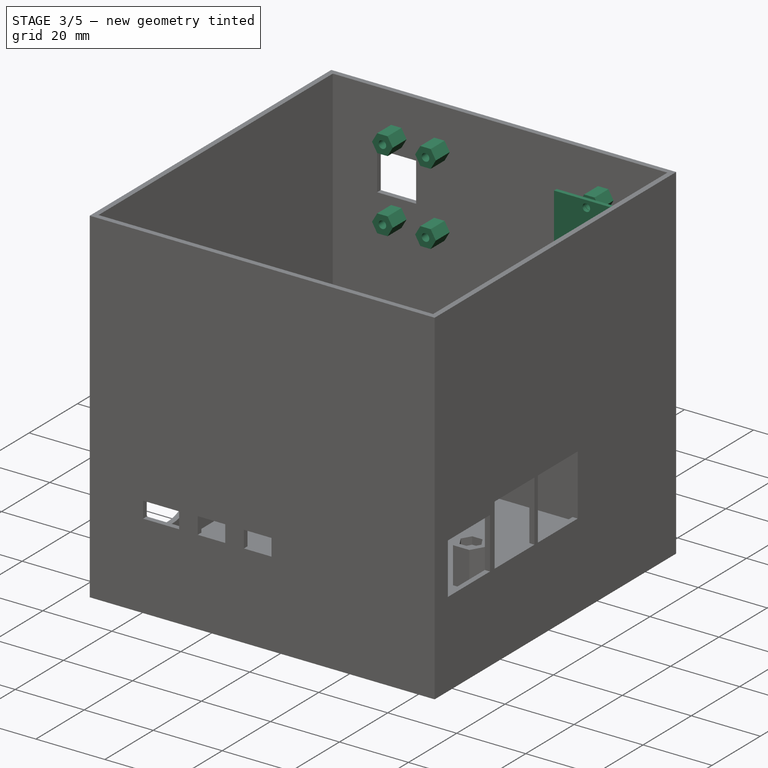
[diagram: stage 3 of 5 — iso view after this stage's code; geometry added in this stage tinted green]
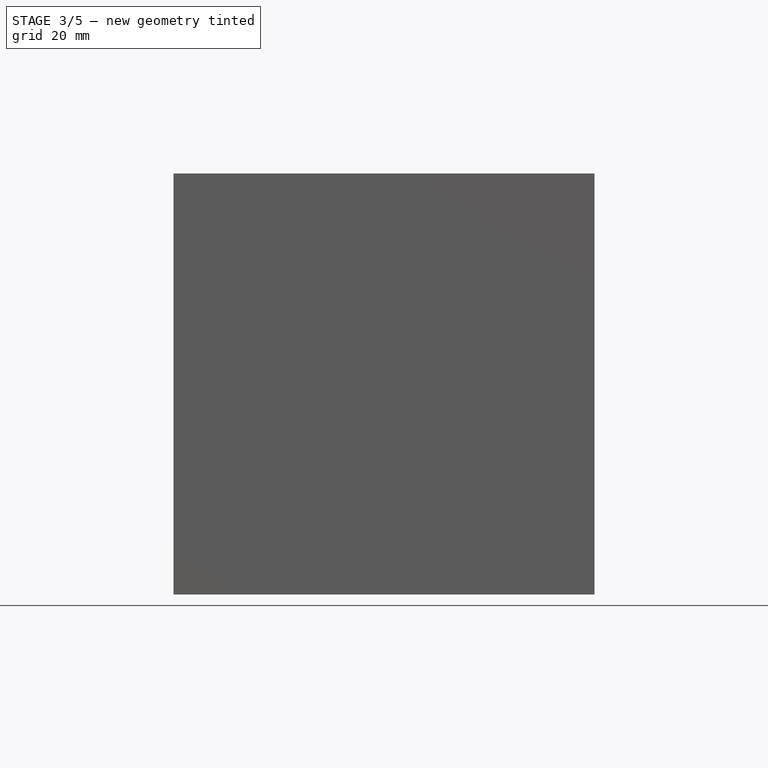
[diagram: stage 3 of 5 — front view after this stage's code; geometry added in this stage tinted green]
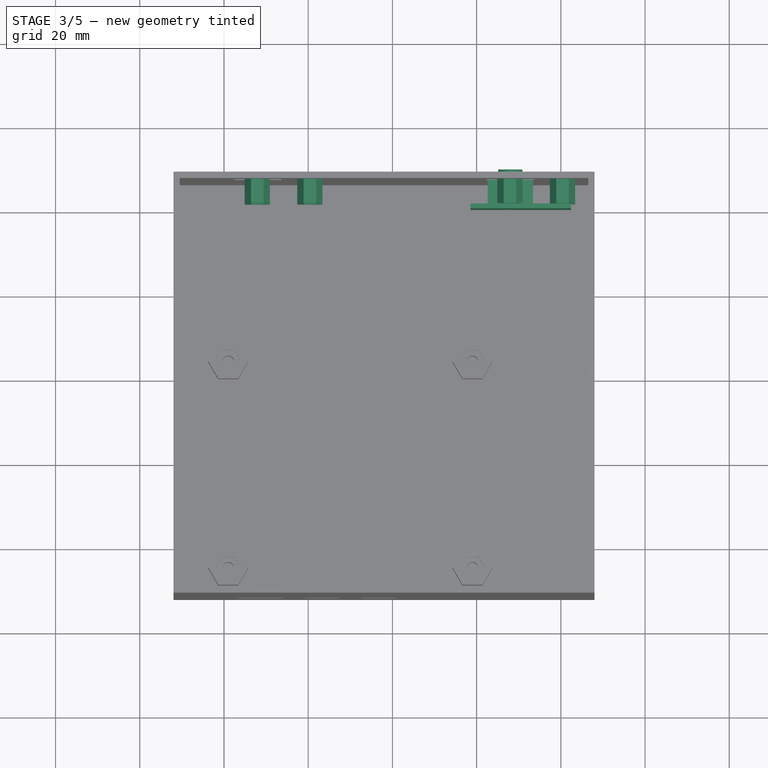
[diagram: stage 3 of 5 — top view after this stage's code; geometry added in this stage tinted green]
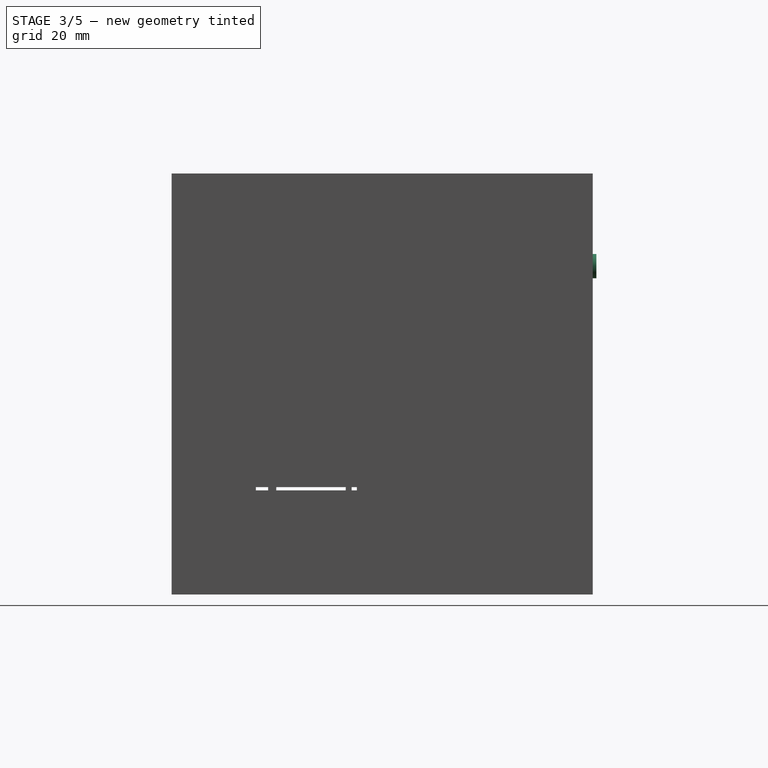
[diagram: stage 3 of 5 — right view after this stage's code; geometry added in this stage tinted green]
FEATURE [PartDesign::Plane] DatumPlane003  label="Plane_cameras_board2"
  AttachmentOffset = pos=(0,0,-59.5) rot=(0,0,1;0rad)
  Length = 82.9769
  MapMode = 5
  Placement = pos=(0,59.5,1.32e-14) rot=(1,0,0;1.5708rad)
  ResizeMode = 0
  Support = -> [XZ_Plane002]
  Width = 105.577
  expr: .AttachmentOffset.Base.z = -<<case>>.cam_distfrompi
FEATURE [Sketcher::SketchObject] Sketch006  label="Sketch_cam2"
  FullyConstrained = true
  MapMode = 5
  Placement = pos=(0,59.5,1.32e-14) rot=(1,0,0;1.5708rad)
  Support = -> [DatumPlane003]
  expr: Constraints[23] = <<camera>>.hole_dia
  expr: Constraints[24] = <<camera>>.width
  expr: Constraints[25] = <<camera>>.length
  expr: Constraints[26] = <<camera>>.hole_spacing
  expr: Constraints[27] = <<camera>>.hole_spacing
  expr: Constraints[28] = <<camera>>.width - 2 * <<camera>>.hole_spacing
  expr: Constraints[29] = <<case>>.cam_heightfrompi
  expr: Constraints[32] = 0.5 * <<case>>.length
  expr: Constraints[33] = <<Sketch_case_bottom>>.Constraints.origin_sd_case
  expr: Constraints[36] = <<camera>>.hole_length
  expr: Constraints[37] = <<camera>>.cam_pos_length
  expr: Constraints[38] = <<camera>>.cam_pos_width
  expr: Constraints[39] = 0.5 * <<case>>.cam_separation
  sketch-geometry (14):
    g0: LineSegment StartX=42.4 StartY=65 StartZ=0 EndX=18.538 EndY=65 EndZ=0
    g1: LineSegment StartX=18.538 StartY=65 StartZ=0 EndX=18.538 EndY=40 EndZ=0
    g2: LineSegment StartX=18.538 StartY=40 StartZ=0 EndX=42.4 EndY=40 EndZ=0
    g3: LineSegment StartX=42.4 StartY=40 StartZ=0 EndX=42.4 EndY=65 EndZ=0
    g4: LineSegment StartX=40.4 StartY=63 StartZ=0 EndX=27.9 EndY=63 EndZ=0
    g5: LineSegment StartX=27.9 StartY=63 StartZ=0 EndX=27.9 EndY=42 EndZ=0
    g6: LineSegment StartX=27.9 StartY=42 StartZ=0 EndX=40.4 EndY=42 EndZ=0
    g7: LineSegment StartX=40.4 StartY=42 StartZ=0 EndX=40.4 EndY=63 EndZ=0
    g8: Circle CenterX=40.4 CenterY=63 CenterZ=0 NormalX=0 NormalY=0 NormalZ=1 AngleXU=0 Radius=1.1
    g9: Circle CenterX=27.9 CenterY=63 CenterZ=0 NormalX=0 NormalY=0 NormalZ=1 AngleXU=0 Radius=1.1
    g10: Circle CenterX=27.9 CenterY=42 CenterZ=0 NormalX=0 NormalY=0 NormalZ=1 AngleXU=0 Radius=1.1
    g11: Circle CenterX=40.4 CenterY=42 CenterZ=0 NormalX=0 NormalY=0 NormalZ=1 AngleXU=0 Radius=1.1
    g12: LineSegment StartX=-2 StartY=10 StartZ=0 EndX=-52 EndY=10 EndZ=0
    g13: LineSegment StartX=42.4 StartY=52.5 StartZ=0 EndX=28 EndY=52.5 EndZ=0
  constraints (40):
    c: Coincident(g0,g1)
    c: Coincident(g1,g2)
    c: Coincident(g2,g3)
    c: Coincident(g3,g0)
    c: Horizontal(g0)
    c: Horizontal(g2)
    c: Vertical(g1)
    c: Vertical(g3)
    c: Coincident(g4,g5)
    c: Coincident(g5,g6)
    c: Coincident(g6,g7)
    c: Coincident(g7,g4)
    c: Horizontal(g4)
    c: Horizontal(g6)
    c: Vertical(g5)
    c: Vertical(g7)
    c: Coincident(g8,g4)
    c: Coincident(g9,g4)
    c: Coincident(g10,g5)
    c: Coincident(g11,g6)
    c: Equal(g8,g9)
    c: Equal(g8,g10)
    c: Equal(g8,g11)
    c: Diameter(g8) = 2.2
    c: DistanceY(g3,g3) = 25
    c: DistanceX(g2,g2) = 23.862
    c: DistanceY(g2,g11) = 2
    c: DistanceX(g11,g2) = 2
    c: DistanceY(g7,g7) = 21
    c: DistanceY(g-1,g1) = 40
    c: Horizontal(g12)
    c: DistanceY(g-1,g12) = 10
    c: DistanceX(g12,g12) = 50
    c: DistanceX(g12,g-1) = 52
    c: PointOnObject(g13,g3)
    c: Horizontal(g13)
    c: DistanceX(g10,g2) = 14.5
    c: DistanceX(g13,g13) = 14.4
    c: DistanceY(g2,g13) = 12.5
    c: DistanceX(g12,g13) = 30
FEATURE [PartDesign::Pad] Pad006  label="Pad_cam2"
  Direction = (0,-1,-2e-16)
  Length = 1.12
  Length2 = 10
  Placement = pos=(0,59.5,1.32e-14) rot=(1,0,0;1.5708rad)
  Profile = -> Sketch006
  ReferenceAxis = -> Sketch006 [N_Axis]
  Refine = true
  Reversed = true
  Type = 0
  expr: Length = <<camera>>.board_height
FEATURE [PartDesign::Body] Body001  label="Camera1"
  Group = -> [DatumPlane002,Sketch005,Pad005,DatumPlane004,Sketch007,Pad007,DatumPlane005,Sketch008,Pad008]
  Origin = -> Origin001
  Tip = -> Pad008
FEATURE [PartDesign::Plane] DatumPlane006  label="Plane_cameras_housing2"
  AttachmentOffset = pos=(0,0,-60.62) rot=(0,0,1;0rad)
  Length = 82.9769
  MapMode = 5
  Placement = pos=(0,60.62,1.35e-14) rot=(1,0,0;1.5708rad)
  ResizeMode = 0
  Support = -> [XZ_Plane002]
  Width = 105.577
  expr: .AttachmentOffset.Base.z = -(<<case>>.cam_distfrompi + <<camera>>.board_height)
FEATURE [PartDesign::Plane] DatumPlane007  label="Plane_camera_lens2"
  AttachmentOffset = pos=(0,0,-66.37) rot=(0,0,1;0rad)
  Length = 82.9769
  MapMode = 5
  Placement = pos=(0,66.37,1.47e-14) rot=(1,0,0;1.5708rad)
  ResizeMode = 0
  Support = -> [XZ_Plane002]
  Width = 105.577
  expr: .AttachmentOffset.Base.z = -(<<case>>.cam_distfrompi + <<camera>>.board_height + <<camera>>.cam_height)
FEATURE [Sketcher::SketchObject] Sketch009  label="Sketch_cam_housing2"
  FullyConstrained = true
  MapMode = 5
  Placement = pos=(0,60.62,1.35e-14) rot=(1,0,0;1.5708rad)
  Support = -> [DatumPlane006]
  expr: Constraints[10] = <<camera>>.length
  expr: Constraints[21] = <<camera>>.cam_width
  expr: Constraints[22] = <<camera>>.cam_pos_length
  expr: Constraints[23] = <<camera>>.cam_pos_width
  expr: Constraints[25] = 0.5 * <<case>>.length
  expr: Constraints[26] = <<Sketch_case_bottom>>.Constraints.origin_sd_case
  expr: Constraints[28] = 0.5 * <<case>>.cam_separation
  expr: Constraints[8] = <<case>>.cam_heightfrompi
  expr: Constraints[9] = <<camera>>.width
  sketch-geometry (10):
    g0: LineSegment StartX=18.538 StartY=65 StartZ=0 EndX=42.4 EndY=65 EndZ=0
    g1: LineSegment StartX=42.4 StartY=65 StartZ=0 EndX=42.4 EndY=40 EndZ=0
    g2: LineSegment StartX=42.4 StartY=40 StartZ=0 EndX=18.538 EndY=40 EndZ=0
    g3: LineSegment StartX=18.538 StartY=40 StartZ=0 EndX=18.538 EndY=65 EndZ=0
    g4: LineSegment StartX=22.6 StartY=57.9 StartZ=0 EndX=22.6 EndY=47.1 EndZ=0
    g5: LineSegment StartX=22.6 StartY=47.1 StartZ=0 EndX=33.4 EndY=47.1 EndZ=0
    g6: LineSegment StartX=33.4 StartY=47.1 StartZ=0 EndX=33.4 EndY=57.9 EndZ=0
    g7: LineSegment StartX=33.4 StartY=57.9 StartZ=0 EndX=22.6 EndY=57.9 EndZ=0
    g8: GeomPoint X=28 Y=52.5 Z=0
    g9: LineSegment StartX=-2 StartY=10 StartZ=0 EndX=-52 EndY=10 EndZ=0
  constraints (29):
    c: Coincident(g0,g1)
    c: Coincident(g1,g2)
    c: Coincident(g2,g3)
    c: Coincident(g3,g0)
    c: Horizontal(g0)
    c: Horizontal(g2)
    c: Vertical(g1)
    c: Vertical(g3)
    c: DistanceY(g-1,g2) = 40
    c: DistanceY(g3,g3) = 25
    c: DistanceX(g0,g0) = 23.862
    c: Coincident(g4,g5)
    c: Coincident(g5,g6)
    c: Coincident(g6,g7)
    c: Coincident(g7,g4)
    c: Horizontal(g5)
    c: Horizontal(g7)
    c: Vertical(g4)
    c: Vertical(g6)
    c: Symmetric(g5,g4,g8)
    c: Equal(g6,g7)
    c: DistanceX(g7,g7) = 10.8
    c: DistanceX(g8,g1) = 14.4
    c: DistanceY(g1,g8) = 12.5
    c: Horizontal(g9)
    c: DistanceX(g9,g9) = 50
    c: DistanceX(g9,g-1) = 52
    c: DistanceY(g-1,g9) = 10
    c: DistanceX(g9,g8) = 30
FEATURE [PartDesign::Pad] Pad009  label="Pad_cam_housing2"
  BaseFeature = -> Pad006
  Direction = (0,-1,-2e-16)
  Length = 5.75
  Length2 = 10
  Placement = pos=(0,59.5,1.32e-14) rot=(1,0,0;1.5708rad)
  Profile = -> Sketch009
  ReferenceAxis = -> Sketch009 [N_Axis]
  Refine = true
  Reversed = true
  Type = 0
  expr: Length = <<camera>>.cam_height
FEATURE [Sketcher::SketchObject] Sketch010  label="Sketch_cam_lens2"
  FullyConstrained = true
  MapMode = 5
  Placement = pos=(0,66.37,1.47e-14) rot=(1,0,0;1.5708rad)
  Support = -> [DatumPlane007]
  expr: Constraints[18] = <<camera>>.cam_width
  expr: Constraints[19] = <<camera>>.length
  expr: Constraints[20] = <<camera>>.width
  expr: Constraints[21] = <<camera>>.cam_pos_width
  expr: Constraints[22] = <<camera>>.cam_pos_length
  expr: Constraints[23] = <<case>>.cam_heightfrompi
  expr: Constraints[25] = <<camera>>.cam_lens_dia
  expr: Constraints[27] = 0.5 * <<case>>.length
  expr: Constraints[28] = <<Sketch_case_bottom>>.Constraints.origin_sd_case
  expr: Constraints[30] = 0.5 * <<case>>.cam_separation
  sketch-geometry (11):
    g0: LineSegment StartX=18.538 StartY=40 StartZ=0 EndX=42.4 EndY=40 EndZ=0
    g1: LineSegment StartX=42.4 StartY=40 StartZ=0 EndX=42.4 EndY=65 EndZ=0
    g2: LineSegment StartX=42.4 StartY=65 StartZ=0 EndX=18.538 EndY=65 EndZ=0
    g3: LineSegment StartX=18.538 StartY=65 StartZ=0 EndX=18.538 EndY=40 EndZ=0
    g4: LineSegment StartX=22.6 StartY=57.9 StartZ=0 EndX=22.6 EndY=47.1 EndZ=0
    g5: LineSegment StartX=22.6 StartY=47.1 StartZ=0 EndX=33.4 EndY=47.1 EndZ=0
    g6: LineSegment StartX=33.4 StartY=47.1 StartZ=0 EndX=33.4 EndY=57.9 EndZ=0
    g7: LineSegment StartX=33.4 StartY=57.9 StartZ=0 EndX=22.6 EndY=57.9 EndZ=0
    g8: GeomPoint X=28 Y=52.5 Z=0
    g9: Circle CenterX=28 CenterY=52.5 CenterZ=0 NormalX=0 NormalY=0 NormalZ=1 AngleXU=0 Radius=2.875
    g10: LineSegment StartX=-2 StartY=10 StartZ=0 EndX=-52 EndY=10 EndZ=0
  constraints (31):
    c: Coincident(g0,g1)
    c: Coincident(g1,g2)
    c: Coincident(g2,g3)
    c: Coincident(g3,g0)
    c: Horizontal(g0)
    c: Horizontal(g2)
    c: Vertical(g1)
    c: Vertical(g3)
    c: Coincident(g4,g5)
    c: Coincident(g5,g6)
    c: Coincident(g6,g7)
    c: Coincident(g7,g4)
    c: Horizontal(g5)
    c: Horizontal(g7)
    c: Vertical(g4)
    c: Vertical(g6)
    c: Symmetric(g5,g4,g8)
    c: Equal(g6,g7)
    c: DistanceX(g7,g7) = 10.8
    c: DistanceX(g2,g2) = 23.862
    c: DistanceY(g3,g3) = 25
    c: DistanceY(g8,g2) = 12.5
    c: DistanceX(g8,g1) = 14.4
    c: DistanceY(g-1,g0) = 40
    c: Coincident(g9,g8)
    c: Diameter(g9) = 5.75
    c: Horizontal(g10)
    c: DistanceX(g10,g10) = 50
    c: DistanceX(g10,g-1) = 52
    c: DistanceY(g-1,g10) = 10
    c: DistanceX(g10,g9) = 30
FEATURE [PartDesign::Pad] Pad010  label="Pad_cam_lens2"
  BaseFeature = -> Pad009
  Direction = (0,-1,-2e-16)
  Length = 2.5
  Length2 = 10
  Placement = pos=(0,59.5,1.32e-14) rot=(1,0,0;1.5708rad)
  Profile = -> Sketch010
  ReferenceAxis = -> Sketch010 [N_Axis]
  Refine = true
  Reversed = true
  Type = 0
  expr: Length = <<camera>>.cam_lens_height
FEATURE [PartDesign::Plane] DatumPlane015
  AttachmentOffset = pos=(0,0,-66.5) rot=(0,0,1;0rad)
  Length = 120
  MapMode = 5
  Placement = pos=(0,66.5,1.48e-14) rot=(1,0,0;1.5708rad)
  ResizeMode = 0
  Support = -> [XZ_Plane003]
  Width = 120
  expr: .AttachmentOffset.Base.z = -(<<case>>.length - 0.5 * <<board>>.width - <<board>>.usbc_offset - <<case>>.io_recess - 2 * <<case>>.wall)
FEATURE [Sketcher::SketchObject] Sketch019
  FullyConstrained = true
  MapMode = 5
  Placement = pos=(0,66.5,1.48e-14) rot=(1,0,0;1.5708rad)
  Support = -> [DatumPlane015]
  expr: Constraints[18] = <<camera>>.length
  expr: Constraints[19] = <<camera>>.width
  expr: Constraints[235] = <<fix>>.boltm2dia + 2 * <<case>>.tol + 2 * <<case>>.wall
  expr: Constraints[23] = <<camera>>.hole_spacing
  expr: Constraints[26] = <<camera>>.cam_pos_width
  expr: Constraints[27] = <<camera>>.cam_pos_length
  expr: Constraints[28] = 0.5 * <<case>>.cam_separation
  expr: Constraints[29] = <<case>>.cam_heightfrompi
  expr: Constraints[2] = 0.5 * <<case>>.length
  expr: Constraints[3] = <<Sketch_case_bottom>>.Constraints.origin_sd_case
  expr: Constraints[40] = <<case>>.cam_separation
  expr: Constraints[45] = <<camera>>.hole_spacing
  expr: Constraints[46] = <<camera>>.hole_spacing
  expr: Constraints[47] = <<camera>>.hole_length
  expr: Constraints[58] = <<camera>>.hole_spacing
  expr: Constraints[59] = <<camera>>.hole_length
  expr: Constraints[75] = <<fix>>.boltm2dia + 2 * <<case>>.tol
  sketch-geometry (83):
    g0: LineSegment StartX=-2 StartY=10 StartZ=0 EndX=-52 EndY=10 EndZ=0
    g1: LineSegment StartX=-17.6 StartY=40 StartZ=0 EndX=-41.462 EndY=40 EndZ=0
    g2: LineSegment StartX=-41.462 StartY=40 StartZ=0 EndX=-41.462 EndY=65 EndZ=0
    g3: LineSegment StartX=-41.462 StartY=65 StartZ=0 EndX=-17.6 EndY=65 EndZ=0
    g4: LineSegment StartX=-17.6 StartY=65 StartZ=0 EndX=-17.6 EndY=40 EndZ=0
    g5: LineSegment StartX=42.4 StartY=40 StartZ=0 EndX=18.538 EndY=40 EndZ=0
    g6: LineSegment StartX=18.538 StartY=40 StartZ=0 EndX=18.538 EndY=65 EndZ=0
    g7: LineSegment StartX=18.538 StartY=65 StartZ=0 EndX=42.4 EndY=65 EndZ=0
    g8: LineSegment StartX=-32.1 StartY=63 StartZ=0 EndX=-32.1 EndY=42 EndZ=0
    g9: LineSegment StartX=-32.1 StartY=42 StartZ=0 EndX=-19.6 EndY=42 EndZ=0
    g10: LineSegment StartX=-19.6 StartY=42 StartZ=0 EndX=-19.6 EndY=63 EndZ=0
    g11: LineSegment StartX=-17.6 StartY=52.5 StartZ=0 EndX=-32 EndY=52.5 EndZ=0
    g12: LineSegment StartX=42.4 StartY=65 StartZ=0 EndX=42.4 EndY=40 EndZ=0
    g13: LineSegment StartX=-32.1 StartY=63 StartZ=0 EndX=-19.6 EndY=63 EndZ=0
    g14: LineSegment StartX=42.4 StartY=52.5 StartZ=0 EndX=28 EndY=52.5 EndZ=0
    g15: LineSegment StartX=27.9 StartY=63 StartZ=0 EndX=40.4 EndY=63 EndZ=0
    g16: LineSegment StartX=40.4 StartY=63 StartZ=0 EndX=40.4 EndY=42 EndZ=0
    g17: LineSegment StartX=40.4 StartY=42 StartZ=0 EndX=27.9 EndY=42 EndZ=0
    g18: LineSegment StartX=27.9 StartY=42 StartZ=0 EndX=27.9 EndY=63 EndZ=0
    g19: Circle CenterX=-32.1 CenterY=63 CenterZ=0 NormalX=0 NormalY=0 NormalZ=1 AngleXU=0 Radius=1.1
    g20: Circle CenterX=-19.6 CenterY=63 CenterZ=0 NormalX=0 NormalY=0 NormalZ=1 AngleXU=0 Radius=1.1
    g21: Circle CenterX=-32.1 CenterY=42 CenterZ=0 NormalX=0 NormalY=0 NormalZ=1 AngleXU=0 Radius=1.1
    g22: Circle CenterX=-19.6 CenterY=42 CenterZ=0 NormalX=0 NormalY=0 NormalZ=1 AngleXU=0 Radius=1.1
    g23: Circle CenterX=27.9 CenterY=42 CenterZ=0 NormalX=0 NormalY=0 NormalZ=1 AngleXU=0 Radius=1.1
    g24: Circle CenterX=40.4 CenterY=42 CenterZ=0 NormalX=0 NormalY=0 NormalZ=1 AngleXU=0 Radius=1.1
    g25: Circle CenterX=27.9 CenterY=63 CenterZ=0 NormalX=0 NormalY=0 NormalZ=1 AngleXU=0 Radius=1.1
    g26: Circle CenterX=40.4 CenterY=63 CenterZ=0 NormalX=0 NormalY=0 NormalZ=1 AngleXU=0 Radius=1.1
    g27: LineSegment StartX=26.3989 StartY=65.6 StartZ=0 EndX=24.8978 EndY=63 EndZ=0
    g28: LineSegment StartX=24.8978 StartY=63 StartZ=0 EndX=26.3989 EndY=60.4 EndZ=0
    g29: LineSegment StartX=26.3989 StartY=60.4 StartZ=0 EndX=29.4011 EndY=60.4 EndZ=0
    g30: LineSegment StartX=29.4011 StartY=60.4 StartZ=0 EndX=30.9022 EndY=63 EndZ=0
    g31: LineSegment StartX=30.9022 StartY=63 StartZ=0 EndX=29.4011 EndY=65.6 EndZ=0
    g32: LineSegment StartX=29.4011 StartY=65.6 StartZ=0 EndX=26.3989 EndY=65.6 EndZ=0
    g33: Circle CenterX=27.9 CenterY=63 CenterZ=0 NormalX=0 NormalY=0 NormalZ=1 AngleXU=0 Radius=3.00222
    g34: LineSegment StartX=43.4022 StartY=63 StartZ=0 EndX=41.9011 EndY=65.6 EndZ=0
    g35: LineSegment StartX=41.9011 StartY=65.6 StartZ=0 EndX=38.8989 EndY=65.6 EndZ=0
    g36: LineSegment StartX=38.8989 StartY=65.6 StartZ=0 EndX=37.3978 EndY=63 EndZ=0
    g37: LineSegment StartX=37.3978 StartY=63 StartZ=0 EndX=38.8989 EndY=60.4 EndZ=0
    g38: LineSegment StartX=38.8989 StartY=60.4 StartZ=0 EndX=41.9011 EndY=60.4 EndZ=0
    g39: LineSegment StartX=41.9011 StartY=60.4 StartZ=0 EndX=43.4022 EndY=63 EndZ=0
    g40: Circle CenterX=40.4 CenterY=63 CenterZ=0 NormalX=0 NormalY=0 NormalZ=1 AngleXU=0 Radius=3.00222
    g41: LineSegment StartX=26.3989 StartY=44.6 StartZ=0 EndX=24.8978 EndY=42 EndZ=0
    g42: LineSegment StartX=24.8978 StartY=42 StartZ=0 EndX=26.3989 EndY=39.4 EndZ=0
    g43: LineSegment StartX=26.3989 StartY=39.4 StartZ=0 EndX=29.4011 EndY=39.4 EndZ=0
    g44: LineSegment StartX=29.4011 StartY=39.4 StartZ=0 EndX=30.9022 EndY=42 EndZ=0
    g45: LineSegment StartX=30.9022 StartY=42 StartZ=0 EndX=29.4011 EndY=44.6 EndZ=0
    g46: LineSegment StartX=29.4011 StartY=44.6 StartZ=0 EndX=26.3989 EndY=44.6 EndZ=0
    g47: Circle CenterX=27.9 CenterY=42 CenterZ=0 NormalX=0 NormalY=0 NormalZ=1 AngleXU=0 Radius=3.00222
    g48: LineSegment StartX=41.9011 StartY=44.6 StartZ=0 EndX=38.8989 EndY=44.6 EndZ=0
    g49: LineSegment StartX=38.8989 StartY=44.6 StartZ=0 EndX=37.3978 EndY=42 EndZ=0
    g50: LineSegment StartX=37.3978 StartY=42 StartZ=0 EndX=38.8989 EndY=39.4 EndZ=0
    g51: LineSegment StartX=38.8989 StartY=39.4 StartZ=0 EndX=41.9011 EndY=39.4 EndZ=0
    g52: LineSegment StartX=41.9011 StartY=39.4 StartZ=0 EndX=43.4022 EndY=42 EndZ=0
    g53: LineSegment StartX=43.4022 StartY=42 StartZ=0 EndX=41.9011 EndY=44.6 EndZ=0
    g54: Circle CenterX=40.4 CenterY=42 CenterZ=0 NormalX=0 NormalY=0 NormalZ=1 AngleXU=0 Radius=3.00222
    g55: LineSegment StartX=-18.0989 StartY=60.4 StartZ=0 EndX=-16.5978 EndY=63 EndZ=0
    g56: LineSegment StartX=-16.5978 StartY=63 StartZ=0 EndX=-18.0989 EndY=65.6 EndZ=0
    g57: LineSegment StartX=-18.0989 StartY=65.6 StartZ=0 EndX=-21.1011 EndY=65.6 EndZ=0
    g58: LineSegment StartX=-21.1011 StartY=65.6 StartZ=0 EndX=-22.6022 EndY=63 EndZ=0
    g59: LineSegment StartX=-22.6022 StartY=63 StartZ=0 EndX=-21.1011 EndY=60.4 EndZ=0
    g60: LineSegment StartX=-21.1011 StartY=60.4 StartZ=0 EndX=-18.0989 EndY=60.4 EndZ=0
    g61: Circle CenterX=-19.6 CenterY=63 CenterZ=0 NormalX=0 NormalY=0 NormalZ=1 AngleXU=0 Radius=3.00222
    g62: LineSegment StartX=-30.5989 StartY=60.4 StartZ=0 EndX=-29.0978 EndY=63 EndZ=0
    g63: LineSegment StartX=-29.0978 StartY=63 StartZ=0 EndX=-30.5989 EndY=65.6 EndZ=0
    g64: LineSegment StartX=-30.5989 StartY=65.6 StartZ=0 EndX=-33.6011 EndY=65.6 EndZ=0
    g65: LineSegment StartX=-33.6011 StartY=65.6 StartZ=0 EndX=-35.1022 EndY=63 EndZ=0
    g66: LineSegment StartX=-35.1022 StartY=63 StartZ=0 EndX=-33.6011 EndY=60.4 EndZ=0
    g67: LineSegment StartX=-33.6011 StartY=60.4 StartZ=0 EndX=-30.5989 EndY=60.4 EndZ=0
    g68: Circle CenterX=-32.1 CenterY=63 CenterZ=0 NormalX=0 NormalY=0 NormalZ=1 AngleXU=0 Radius=3.00222
    g69: LineSegment StartX=-30.5989 StartY=44.6 StartZ=0 EndX=-33.6011 EndY=44.6 EndZ=0
    g70: LineSegment StartX=-33.6011 StartY=44.6 StartZ=0 EndX=-35.1022 EndY=42 EndZ=0
    g71: LineSegment StartX=-35.1022 StartY=42 StartZ=0 EndX=-33.6011 EndY=39.4 EndZ=0
    g72: LineSegment StartX=-33.6011 StartY=39.4 StartZ=0 EndX=-30.5989 EndY=39.4 EndZ=0
    g73: LineSegment StartX=-30.5989 StartY=39.4 StartZ=0 EndX=-29.0978 EndY=42 EndZ=0
    g74: LineSegment StartX=-29.0978 StartY=42 StartZ=0 EndX=-30.5989 EndY=44.6 EndZ=0
    g75: Circle CenterX=-32.1 CenterY=42 CenterZ=0 NormalX=0 NormalY=0 NormalZ=1 AngleXU=0 Radius=3.00222
    g76: LineSegment StartX=-21.1011 StartY=44.6 StartZ=0 EndX=-22.6022 EndY=42 EndZ=0
    g77: LineSegment StartX=-22.6022 StartY=42 StartZ=0 EndX=-21.1011 EndY=39.4 EndZ=0
    g78: LineSegment StartX=-21.1011 StartY=39.4 StartZ=0 EndX=-18.0989 EndY=39.4 EndZ=0
    g79: LineSegment StartX=-18.0989 StartY=39.4 StartZ=0 EndX=-16.5978 EndY=42 EndZ=0
    g80: LineSegment StartX=-16.5978 StartY=42 StartZ=0 EndX=-18.0989 EndY=44.6 EndZ=0
    g81: LineSegment StartX=-18.0989 StartY=44.6 StartZ=0 EndX=-21.1011 EndY=44.6 EndZ=0
    g82: Circle CenterX=-19.6 CenterY=42 CenterZ=0 NormalX=0 NormalY=0 NormalZ=1 AngleXU=0 Radius=3.00222
  constraints (204):
    c: Horizontal(g0)
    c: DistanceY(g-1,g0) = 10
    c: DistanceX(g0,g0) = 50
    c: DistanceX(g0,g-1) = 52
    c: Coincident(g1,g2)
    c: Coincident(g2,g3)
    c: Horizontal(g1)
    c: Horizontal(g3)
    c: Vertical(g2)
    c: Vertical(g4)
    c: Coincident(g5,g6)
    c: Coincident(g6,g7)
    c: Horizontal(g5)
    c: Horizontal(g7)
    c: Vertical(g6)
    c: Equal(g3,g7)
    c: Equal(g4,g6)
    c: Horizontal(g5,g1)
    c: DistanceX(g3,g3) = 23.862
    c: DistanceY(g2,g2) = 25
    c: Horizontal(g9)
    c: Vertical(g8)
    c: Vertical(g10)
    c: DistanceY(g1,g9) = 2
    c: PointOnObject(g11,g4)
    c: Horizontal(g11)
    c: DistanceY(g1,g11) = 12.5
    c: DistanceX(g11,g11) = 14.4
    c: DistanceX(g11,g0) = 30
    c: DistanceY(g-1,g1) = 40
    c: Coincident(g12,g7)
    c: Coincident(g12,g5)
    c: Vertical(g12)
    c: Coincident(g13,g8)
    c: Coincident(g13,g10)
    c: Horizontal(g13)
    c: PointOnObject(g14,g12)
    c: Horizontal(g14)
    c: Equal(g11,g14)
    c: Horizontal(g11,g14)
    c: DistanceX(g11,g14) = 60
    c: Coincident(g3,g4)
    c: Coincident(g8,g9)
    c: Coincident(g1,g4)
    c: Coincident(g9,g10)
    c: DistanceY(g10,g3) = 2
    c: DistanceX(g10,g3) = 2
    c: DistanceX(g8,g3) = 14.5
    c: Coincident(g15,g16)
    c: Coincident(g16,g17)
    c: Coincident(g17,g18)
    c: Coincident(g18,g15)
    c: Horizontal(g15)
    c: Horizontal(g17)
    c: Vertical(g16)
    c: Vertical(g18)
    c: Horizontal(g15,g10)
    c: Horizontal(g16,g9)
    c: DistanceX(g15,g7) = 2
    c: DistanceX(g15,g7) = 14.5
    c: Coincident(g19,g8)
    c: Coincident(g20,g10)
    c: Coincident(g21,g8)
    c: Coincident(g22,g9)
    c: Coincident(g23,g17)
    c: Coincident(g24,g16)
    c: Coincident(g25,g15)
    c: Coincident(g26,g15)
    c: Equal(g19,g21)
    c: Equal(g21,g22)
    c: Equal(g22,g20)
    c: Equal(g20,g25)
    c: Equal(g25,g23)
    c: Equal(g23,g24)
    c: Equal(g24,g26)
    c: Diameter(g24) = 2.2
    c: Coincident(g27,g28)
    c: Coincident(g28,g29)
    c: Coincident(g29,g30)
    c: Coincident(g30,g31)
    c: Coincident(g31,g32)
    c: Coincident(g32,g27)
    c: Equal(g27, g28-g32) x5
    c: PointOnObject(g27,g33)
    c: PointOnObject(g28,g33)
    c: PointOnObject(g29,g33)
    c: PointOnObject(g30,g33)
    c: PointOnObject(g31,g33)
    c: PointOnObject(g32,g33)
    c: Coincident(g33,g25)
    c: Coincident(g34,g35)
    c: Coincident(g35,g36)
    c: Coincident(g36,g37)
    c: Coincident(g37,g38)
    c: Coincident(g38,g39)
    c: Coincident(g39,g34)
    c: Equal(g34, g35-g39) x5
    c: PointOnObject(g34,g40)
    c: PointOnObject(g35,g40)
    c: PointOnObject(g36,g40)
    c: PointOnObject(g37,g40)
    c: PointOnObject(g38,g40)
    c: PointOnObject(g39,g40)
    c: Coincident(g40,g26)
    c: Coincident(g41,g42)
    c: Coincident(g42,g43)
    c: Coincident(g43,g44)
    c: Coincident(g44,g45)
    c: Coincident(g45,g46)
    c: Coincident(g46,g41)
    c: Equal(g41, g42-g46) x5
    c: PointOnObject(g41,g47)
    c: PointOnObject(g42,g47)
    c: PointOnObject(g43,g47)
    c: PointOnObject(g44,g47)
    c: PointOnObject(g45,g47)
    c: PointOnObject(g46,g47)
    c: Coincident(g47,g23)
    c: Coincident(g48,g49)
    c: Coincident(g49,g50)
    c: Coincident(g50,g51)
    c: Coincident(g51,g52)
    c: Coincident(g52,g53)
    c: Coincident(g53,g48)
    c: Equal(g48, g49-g53) x5
    c: PointOnObject(g48,g54)
    c: PointOnObject(g49,g54)
    c: PointOnObject(g50,g54)
    c: PointOnObject(g51,g54)
    c: PointOnObject(g52,g54)
    c: PointOnObject(g53,g54)
    c: Coincident(g54,g24)
    c: Coincident(g55,g56)
    c: Coincident(g56,g57)
    c: Coincident(g57,g58)
    c: Coincident(g58,g59)
    c: Coincident(g59,g60)
    c: Coincident(g60,g55)
    c: Equal(g55, g56-g60) x5
    c: PointOnObject(g55,g61)
    c: PointOnObject(g56,g61)
    c: PointOnObject(g57,g61)
    c: PointOnObject(g58,g61)
    c: PointOnObject(g59,g61)
    c: PointOnObject(g60,g61)
    c: Coincident(g61,g20)
    c: Coincident(g62,g63)
    c: Coincident(g63,g64)
    c: Coincident(g64,g65)
    c: Coincident(g65,g66)
    c: Coincident(g66,g67)
    c: Coincident(g67,g62)
    c: Equal(g62, g63-g67) x5
    c: PointOnObject(g62,g68)
    c: PointOnObject(g63,g68)
    c: PointOnObject(g64,g68)
    c: PointOnObject(g65,g68)
    c: PointOnObject(g66,g68)
    c: PointOnObject(g67,g68)
    c: Coincident(g68,g19)
    c: Coincident(g69,g70)
    c: Coincident(g70,g71)
    c: Coincident(g71,g72)
    c: Coincident(g72,g73)
    c: Coincident(g73,g74)
    c: Coincident(g74,g69)
    c: Equal(g69, g70-g74) x5
    c: PointOnObject(g69,g75)
    c: PointOnObject(g70,g75)
    c: PointOnObject(g71,g75)
    c: PointOnObject(g72,g75)
    c: PointOnObject(g73,g75)
    c: PointOnObject(g74,g75)
    c: Coincident(g75,g21)
    c: Coincident(g76,g77)
    c: Coincident(g77,g78)
    c: Coincident(g78,g79)
    c: Coincident(g79,g80)
    c: Coincident(g80,g81)
    c: Coincident(g81,g76)
    c: Equal(g76, g77-g81) x5
    c: PointOnObject(g76,g82)
    c: PointOnObject(g77,g82)
    c: PointOnObject(g78,g82)
    c: PointOnObject(g79,g82)
    c: PointOnObject(g80,g82)
    c: PointOnObject(g81,g82)
    c: Coincident(g82,g22)
    c: Equal(g40,g33)
    c: Equal(g33,g47)
    c: Equal(g47,g54)
    c: Equal(g54,g82)
    c: Equal(g82,g61)
    c: Equal(g61,g68)
    c: Equal(g68,g75)
    c: Horizontal(g29)
    c: Horizontal(g38)
    c: Horizontal(g43)
    c: Horizontal(g51)
    c: Horizontal(g60)
    c: Horizontal(g67)
    c: Horizontal(g72)
    c: Horizontal(g78)
    c: DistanceY(g51,g48) = 5.2
FEATURE [PartDesign::Pad] Pad013
  BaseFeature = -> Pocket005
  Direction = (0,-1,-2e-16)
  Length = 5.75
  Length2 = 10
  Placement = pos=(0,0,-25.5) rot=(0,0,1;0rad)
  Profile = -> Sketch019
  ReferenceAxis = -> Sketch019 [N_Axis]
  Refine = true
  Type = 0
  expr: Length = <<camera>>.cam_height
FEATURE [PartDesign::Body] Body003  label="Case"
  Group = -> [DatumPlane008,Sketch011,Pad011,Sketch012,Pocket,DatumPlane009,Sketch013,Pad012,DatumPlane010,Sketch014,Pocket001,DatumPlane011,Sketch015,Pocket002,DatumPlane012,Sketch016,Pocket003,DatumPlane013,Sketch017,Pocket004,DatumPlane014,Sketch018,Pocket005,DatumPlane015,Sketch019,Pad013]
  Origin = -> Origin003
  Tip = -> Pad013
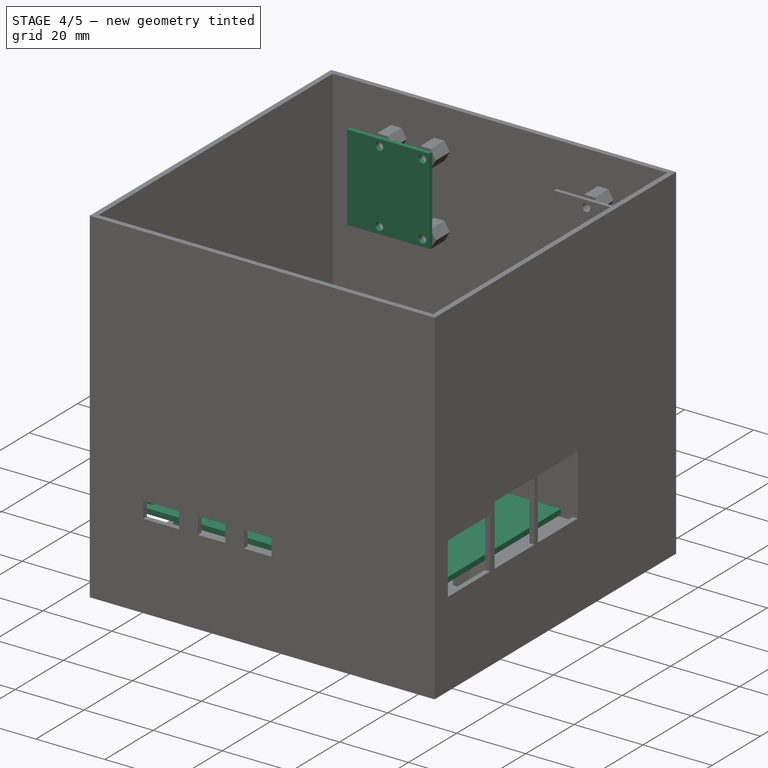
[diagram: stage 4 of 5 — iso view after this stage's code; geometry added in this stage tinted green]
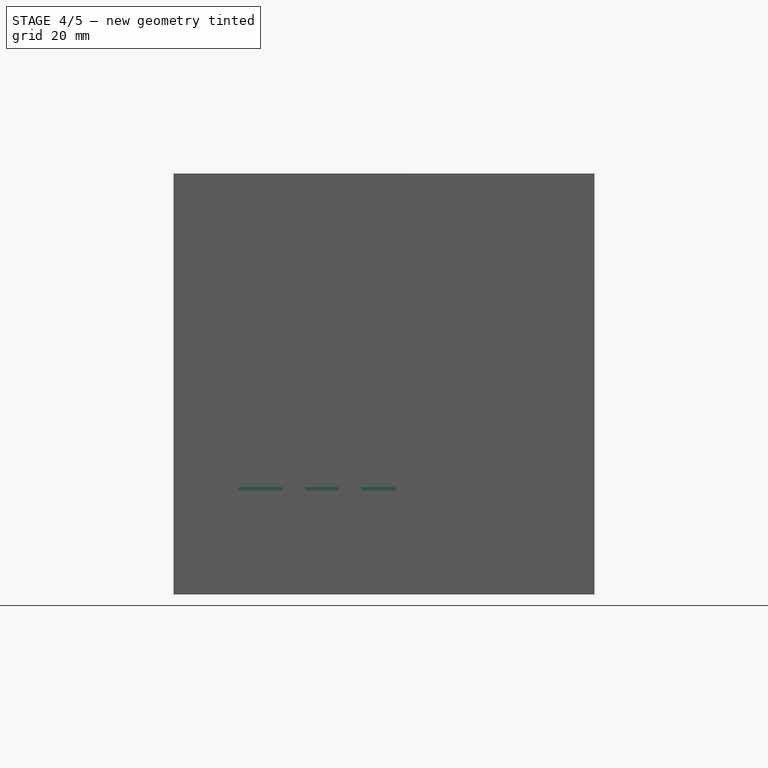
[diagram: stage 4 of 5 — front view after this stage's code; geometry added in this stage tinted green]
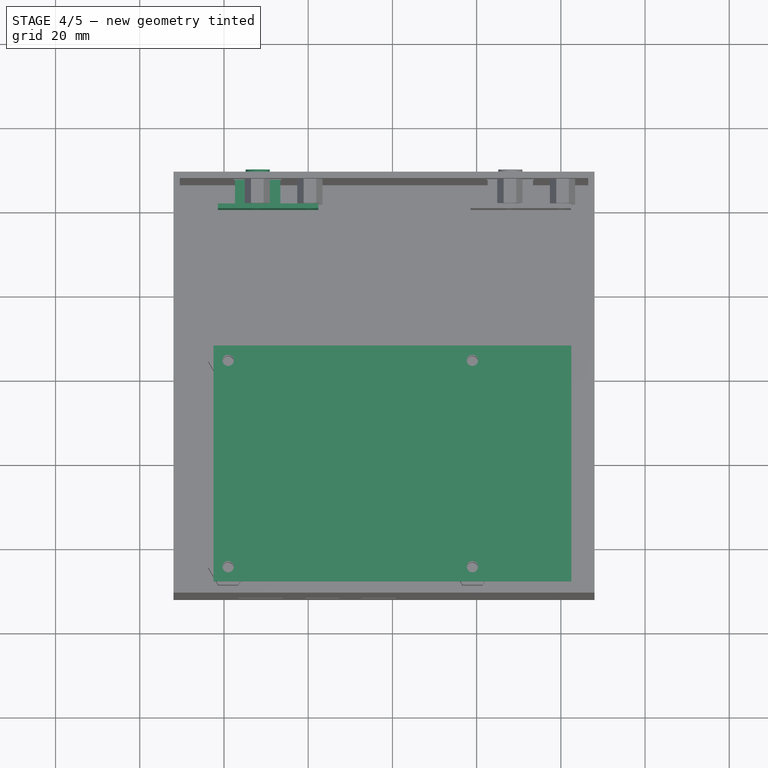
[diagram: stage 4 of 5 — top view after this stage's code; geometry added in this stage tinted green]
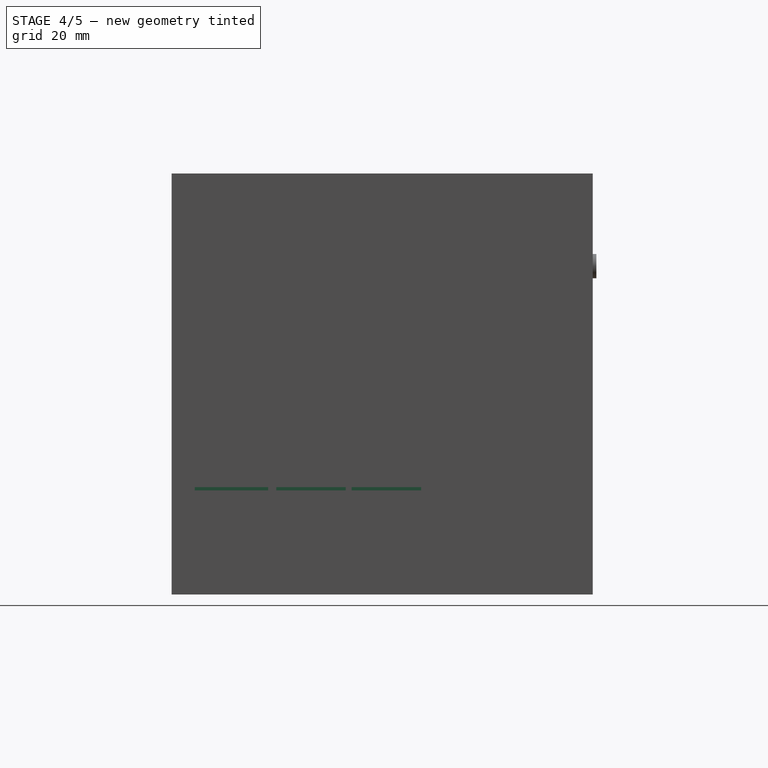
[diagram: stage 4 of 5 — right view after this stage's code; geometry added in this stage tinted green]
FEATURE [Spreadsheet::Sheet] Spreadsheet  label="board"
  cells = A1=length; B1(length)=85; A2=width; B2(width)=56; A3=hole_length; B3(hole_length)=58; A4=hole_width; B4(hole_width)=49; A5=hole_diam; B5(hole_diam)=2.7; A6=hole_spacing; B6(hole_spacing)=3.5; A7=usba_offset; B7(usba_offset)=3; A8=usba_placement1; B8(usba_placement1)=29.1; A9=usba_placement2; B9(usba_placement2)=47; A10=rj45_placement; B10(rj45_placement)=10.2; A11=usbc_offset; B11(usbc_offset)=1.5; A12=usbc_placement; B12(usbc_placement)=11.2; A13=hdmi_placement1; B13(hdmi_placement1)=25.8; A14=hdmi_placement2; B14(hdmi_placement2)=39.2; A15=height; B15(height)=1.5; A16=sd_offset; B16(sd_offset)=2
FEATURE [Spreadsheet::Sheet] Spreadsheet003  label="io"
  cells = A1=usba_width; B1(usba_width)=15; A2=usba_length; B2(usba_length)=19; A3=usba_height; B3(usba_height)=16.1; A4=usbc_width; B4(usbc_width)=8.94; A5=usbc_length; B5(usbc_length)=7.35; A6=usbc_height; B6(usbc_height)=3.2; A7=usbc_rad; B7(usbc_rad)=0.5; A8=rj45_width; B8(rj45_width)=15.93; A9=rj45_length; B9(rj45_length)=21.25; A10=rj45_height; B10(rj45_height)=13.3; A11=hdmi_width; B11(hdmi_width)=6.5; A12=hdmi_length; B12(hdmi_length)=7.5; A13=hdmi_height; B13(hdmi_height)=3.4; A14=hdmi_smlwidth; B14(hdmi_smlwidth)=4.44; A15=hdmi_taperheight; B15(hdmi_taperheight)=1.9; A16=sd_width; B16(sd_width)=12; A17=sd_length; B17(sd_length)=16; A18=sd_height; B18(sd_height)=1.5
FEATURE [Sketcher::SketchObject] Sketch  label="Sketch_board_base"
  FullyConstrained = true
  MapMode = 5
  Support = -> [XY_Plane]
  expr: Constraints[10] = <<board>>.width
  expr: Constraints[11] = <<board>>.length
  expr: Constraints[21] = <<board>>.hole_length
  expr: Constraints[22] = <<board>>.hole_width
  expr: Constraints[23] = <<board>>.hole_spacing
  expr: Constraints[24] = <<board>>.hole_spacing
  expr: Constraints[32] = <<board>>.hole_diam
  sketch-geometry (14):
    g0: LineSegment StartX=42.5 StartY=-28 StartZ=0 EndX=42.5 EndY=28 EndZ=0
    g1: LineSegment StartX=42.5 StartY=28 StartZ=0 EndX=-42.5 EndY=28 EndZ=0
    g2: LineSegment StartX=-42.5 StartY=28 StartZ=0 EndX=-42.5 EndY=-28 EndZ=0
    g3: LineSegment StartX=-42.5 StartY=-28 StartZ=0 EndX=42.5 EndY=-28 EndZ=0
    g4: GeomPoint X=0 Y=0 Z=0
    g5: GeomPoint X=0 Y=0 Z=0
    g6: LineSegment StartX=-39 StartY=24.5 StartZ=0 EndX=19 EndY=24.5 EndZ=0
    g7: LineSegment StartX=19 StartY=24.5 StartZ=0 EndX=19 EndY=-24.5 EndZ=0
    g8: LineSegment StartX=19 StartY=-24.5 StartZ=0 EndX=-39 EndY=-24.5 EndZ=0
    g9: LineSegment StartX=-39 StartY=-24.5 StartZ=0 EndX=-39 EndY=24.5 EndZ=0
    g10: Circle CenterX=-39 CenterY=24.5 CenterZ=0 NormalX=0 NormalY=0 NormalZ=1 AngleXU=0 Radius=1.35
    g11: Circle CenterX=19 CenterY=24.5 CenterZ=0 NormalX=0 NormalY=0 NormalZ=1 AngleXU=0 Radius=1.35
    g12: Circle CenterX=19 CenterY=-24.5 CenterZ=0 NormalX=0 NormalY=0 NormalZ=1 AngleXU=0 Radius=1.35
    g13: Circle CenterX=-39 CenterY=-24.5 CenterZ=0 NormalX=0 NormalY=0 NormalZ=1 AngleXU=0 Radius=1.35
  constraints (33):
    c: Coincident(g0,g1)
    c: Coincident(g1,g2)
    c: Coincident(g2,g3)
    c: Coincident(g3,g0)
    c: Horizontal(g1)
    c: Horizontal(g3)
    c: Vertical(g0)
    c: Vertical(g2)
    c: Symmetric(g1,g0,g4)
    c: Coincident(g4,g-1)
    c: DistanceY(g2,g2) = 56
    c: DistanceX(g1,g1) = 85
    c: Coincident(g5,g4)
    c: Coincident(g6,g7)
    c: Coincident(g7,g8)
    c: Coincident(g8,g9)
    c: Coincident(g9,g6)
    c: Horizontal(g6)
    c: Horizontal(g8)
    c: Vertical(g7)
    c: Vertical(g9)
    c: DistanceX(g6,g6) = 58
    c: DistanceY(g9,g9) = 49
    c: DistanceX(g1,g6) = 3.5
    c: DistanceY(g6,g1) = 3.5
    c: Coincident(g10,g6)
    c: Coincident(g11,g6)
    c: Coincident(g12,g7)
    c: Coincident(g13,g8)
    c: Equal(g10,g11)
    c: Equal(g10,g12)
    c: Equal(g10,g13)
    c: Diameter(g10) = 2.7
FEATURE [PartDesign::Pad] Pad  label="Pad_board_base"
  Direction = (0,0,1)
  Length = 1.5
  Length2 = 10
  Profile = -> Sketch
  ReferenceAxis = -> Sketch [N_Axis]
  Refine = true
  Reversed = true
  Type = 0
  expr: Length = <<board>>.height
FEATURE [PartDesign::Body] Body  label="Board"
  Group = -> [Sketch,Pad,Sketch001,Pad001,Sketch002,Pad002,DatumPlane,Sketch003,Pad003,DatumPlane001,Sketch004,Pad004]
  Origin = -> Origin
  Tip = -> Pad004
FEATURE [Spreadsheet::Sheet] Spreadsheet004  label="camera"
  cells = A1=length; B1(length)=23.862; A2=width; B2(width)=25; A3=board_height; B3(board_height)=1.12; A4=hole_length; B4(hole_length)=14.5; A5=hole_spacing; B5(hole_spacing)=2; A6=hole_dia; B6(hole_dia)=2.2; A7=cam_width; B7(cam_width)=10.8; A8=cam_pos_width; B8(cam_pos_width)=12.5; A9=cam_pos_length; B9(cam_pos_length)=14.4; A10=cam_height; B10(cam_height)=5.75; A11=cam_lens_height; B11(cam_lens_height)=2.5; A12=cam_lens_dia; B12(cam_lens_dia)=5.75
FEATURE [Spreadsheet::Sheet] Spreadsheet005  label="case"
  cells = A1=cam_separation; B1(cam_separation)=60; A2=cam_distfrompi; B2(cam_distfrompi)==0.5 * <<board>>.width + 31.5; A3=cam_heightfrompi; B3(cam_heightfrompi)=40; A4=tol; B4(tol)=0.1; A5=width; B5(width)=100; A6=length; B6(length)=100; A7=height; B7(height)=100; A8=wall; B8(wall)=1.5; A9=nut_height; B9(nut_height)==<<fix>>.space_length + <<fix>>.nut_height + wall; A10=io_recess; B10(io_recess)=1
FEATURE [PartDesign::Plane] DatumPlane002  label="Plane_camera_board1"
  AttachmentOffset = pos=(0,0,-59.5) rot=(0,0,1;0rad)
  Length = 81.9301
  MapMode = 5
  Placement = pos=(0,59.5,1.32e-14) rot=(1,0,0;1.5708rad)
  ResizeMode = 0
  Support = -> [XZ_Plane001]
  Width = 105.468
  expr: .AttachmentOffset.Base.z = -<<case>>.cam_distfrompi
FEATURE [Sketcher::SketchObject] Sketch005  label="Sketch_cam_board1"
  FullyConstrained = true
  MapMode = 5
  Placement = pos=(0,59.5,1.32e-14) rot=(1,0,0;1.5708rad)
  Support = -> [DatumPlane002]
  expr: Constraints[18] = <<camera>>.hole_spacing
  expr: Constraints[19] = <<camera>>.hole_spacing
  expr: Constraints[20] = <<camera>>.hole_spacing
  expr: Constraints[28] = <<camera>>.hole_dia
  expr: Constraints[29] = <<case>>.cam_heightfrompi
  expr: Constraints[33] = <<camera>>.cam_pos_width
  expr: Constraints[34] = <<camera>>.cam_pos_length
  expr: Constraints[35] = <<camera>>.hole_length
  expr: Constraints[37] = <<Sketch_case_bottom>>.Constraints.origin_sd_case
  expr: Constraints[38] = 0.5 * <<case>>.length
  expr: Constraints[39] = 0.5 * <<case>>.cam_separation
  expr: Constraints[8] = <<camera>>.length
  expr: Constraints[9] = <<camera>>.width
  sketch-geometry (14):
    g0: LineSegment StartX=-41.462 StartY=65 StartZ=0 EndX=-17.6 EndY=65 EndZ=0
    g1: LineSegment StartX=-17.6 StartY=65 StartZ=0 EndX=-17.6 EndY=40 EndZ=0
    g2: LineSegment StartX=-17.6 StartY=40 StartZ=0 EndX=-41.462 EndY=40 EndZ=0
    g3: LineSegment StartX=-41.462 StartY=40 StartZ=0 EndX=-41.462 EndY=65 EndZ=0
    g4: LineSegment StartX=-32.1 StartY=63 StartZ=0 EndX=-19.6 EndY=63 EndZ=0
    g5: LineSegment StartX=-19.6 StartY=63 StartZ=0 EndX=-19.6 EndY=42 EndZ=0
    g6: LineSegment StartX=-19.6 StartY=42 StartZ=0 EndX=-32.1 EndY=42 EndZ=0
    g7: LineSegment StartX=-32.1 StartY=42 StartZ=0 EndX=-32.1 EndY=63 EndZ=0
    g8: Circle CenterX=-32.1 CenterY=63 CenterZ=0 NormalX=0 NormalY=0 NormalZ=1 AngleXU=0 Radius=1.1
    g9: Circle CenterX=-19.6 CenterY=63 CenterZ=0 NormalX=0 NormalY=0 NormalZ=1 AngleXU=0 Radius=1.1
    g10: Circle CenterX=-19.6 CenterY=42 CenterZ=0 NormalX=0 NormalY=0 NormalZ=1 AngleXU=0 Radius=1.1
    g11: Circle CenterX=-32.1 CenterY=42 CenterZ=0 NormalX=0 NormalY=0 NormalZ=1 AngleXU=0 Radius=1.1
    g12: LineSegment StartX=-52 StartY=10 StartZ=0 EndX=-2 EndY=10 EndZ=0
    g13: LineSegment StartX=-17.6 StartY=52.5 StartZ=0 EndX=-32 EndY=52.5 EndZ=0
  constraints (40):
    c: Coincident(g0,g1)
    c: Coincident(g1,g2)
    c: Coincident(g2,g3)
    c: Coincident(g3,g0)
    c: Horizontal(g0)
    c: Horizontal(g2)
    c: Vertical(g1)
    c: Vertical(g3)
    c: DistanceX(g0,g0) = 23.862
    c: DistanceY(g3,g3) = 25
    c: Coincident(g4,g5)
    c: Coincident(g5,g6)
    c: Coincident(g6,g7)
    c: Coincident(g7,g4)
    c: Horizontal(g4)
    c: Horizontal(g6)
    c: Vertical(g5)
    c: Vertical(g7)
    c: DistanceX(g4,g0) = 2
    c: DistanceY(g4,g0) = 2
    c: DistanceY(g1,g5) = 2
    c: Coincident(g8,g4)
    c: Coincident(g9,g4)
    c: Coincident(g10,g5)
    c: Coincident(g11,g6)
    c: Equal(g8,g9)
    c: Equal(g8,g10)
    c: Equal(g8,g11)
    c: Diameter(g8) = 2.2
    c: DistanceY(g-1,g1) = 40
    c: Horizontal(g12)
    c: PointOnObject(g13,g1)
    c: Horizontal(g13)
    c: DistanceY(g1,g13) = 12.5
    c: DistanceX(g13,g13) = 14.4
    c: DistanceX(g8,g0) = 14.5
    c: DistanceY(g-1,g12) = 10
    c: DistanceX(g12,g-1) = 52
    c: DistanceX(g12,g12) = 50
    c: DistanceX(g13,g12) = 30
FEATURE [PartDesign::Pad] Pad005  label="Pad_cam1"
  Direction = (0,-1,-2e-16)
  Length = 1.12
  Length2 = 10
  Placement = pos=(0,59.5,1.32e-14) rot=(1,0,0;1.5708rad)
  Profile = -> Sketch005
  ReferenceAxis = -> Sketch005 [N_Axis]
  Refine = true
  Reversed = true
  Type = 0
  expr: Length = <<camera>>.board_height
FEATURE [PartDesign::Plane] DatumPlane004  label="Plane_camera_housing1"
  AttachmentOffset = pos=(0,0,-60.62) rot=(0,0,1;0rad)
  Length = 81.9301
  MapMode = 5
  Placement = pos=(0,60.62,1.35e-14) rot=(1,0,0;1.5708rad)
  ResizeMode = 0
  Support = -> [XZ_Plane001]
  Width = 105.468
  expr: .AttachmentOffset.Base.z = -(<<case>>.cam_distfrompi + <<camera>>.board_height)
FEATURE [Sketcher::SketchObject] Sketch007  label="Sketch_cam_housing1"
  FullyConstrained = true
  MapMode = 5
  Placement = pos=(0,60.62,1.35e-14) rot=(1,0,0;1.5708rad)
  Support = -> [DatumPlane004]
  expr: Constraints[10] = <<case>>.cam_heightfrompi
  expr: Constraints[21] = <<camera>>.cam_width
  expr: Constraints[22] = <<camera>>.cam_pos_length
  expr: Constraints[23] = 0.5 * <<camera>>.width
  expr: Constraints[26] = 0.5 * <<case>>.length
  expr: Constraints[27] = <<Sketch_case_bottom>>.Constraints.origin_sd_case
  expr: Constraints[28] = 0.5 * <<case>>.cam_separation
  expr: Constraints[8] = <<camera>>.length
  expr: Constraints[9] = <<camera>>.width
  sketch-geometry (10):
    g0: LineSegment StartX=-41.462 StartY=65 StartZ=0 EndX=-17.6 EndY=65 EndZ=0
    g1: LineSegment StartX=-17.6 StartY=65 StartZ=0 EndX=-17.6 EndY=40 EndZ=0
    g2: LineSegment StartX=-17.6 StartY=40 StartZ=0 EndX=-41.462 EndY=40 EndZ=0
    g3: LineSegment StartX=-41.462 StartY=40 StartZ=0 EndX=-41.462 EndY=65 EndZ=0
    g4: LineSegment StartX=-37.4 StartY=57.9 StartZ=0 EndX=-37.4 EndY=47.1 EndZ=0
    g5: LineSegment StartX=-37.4 StartY=47.1 StartZ=0 EndX=-26.6 EndY=47.1 EndZ=0
    g6: LineSegment StartX=-26.6 StartY=47.1 StartZ=0 EndX=-26.6 EndY=57.9 EndZ=0
    g7: LineSegment StartX=-26.6 StartY=57.9 StartZ=0 EndX=-37.4 EndY=57.9 EndZ=0
    g8: GeomPoint X=-32 Y=52.5 Z=0
    g9: LineSegment StartX=-52 StartY=10 StartZ=0 EndX=-2 EndY=10 EndZ=0
  constraints (29):
    c: Coincident(g0,g1)
    c: Coincident(g1,g2)
    c: Coincident(g2,g3)
    c: Coincident(g3,g0)
    c: Horizontal(g0)
    c: Horizontal(g2)
    c: Vertical(g1)
    c: Vertical(g3)
    c: DistanceX(g2,g2) = 23.862
    c: DistanceY(g1,g1) = 25
    c: DistanceY(g-1,g1) = 40
    c: Coincident(g4,g5)
    c: Coincident(g5,g6)
    c: Coincident(g6,g7)
    c: Coincident(g7,g4)
    c: Horizontal(g5)
    c: Horizontal(g7)
    c: Vertical(g4)
    c: Vertical(g6)
    c: Symmetric(g5,g4,g8)
    c: Equal(g4,g7)
    c: DistanceX(g7,g7) = 10.8
    c: DistanceX(g8,g0) = 14.4
    c: DistanceY(g8,g0) = 12.5
    c: Horizontal(g9)
    c: DistanceY(g-1,g9) = 10
    c: DistanceX(g9,g9) = 50
    c: DistanceX(g9,g-1) = 52
    c: DistanceX(g8,g9) = 30
FEATURE [PartDesign::Pad] Pad007  label="Pad_cam_housing1"
  BaseFeature = -> Pad005
  Direction = (0,-1,-2e-16)
  Length = 5.75
  Length2 = 10
  Placement = pos=(0,59.5,1.32e-14) rot=(1,0,0;1.5708rad)
  Profile = -> Sketch007
  ReferenceAxis = -> Sketch007 [N_Axis]
  Refine = true
  Reversed = true
  Type = 0
  expr: Length = <<camera>>.cam_height
FEATURE [PartDesign::Plane] DatumPlane005  label="Plane_camera_lens1"
  AttachmentOffset = pos=(0,0,-66.37) rot=(0,0,1;0rad)
  Length = 81.9301
  MapMode = 5
  Placement = pos=(0,66.37,1.47e-14) rot=(1,0,0;1.5708rad)
  ResizeMode = 0
  Support = -> [XZ_Plane001]
  Width = 105.468
  expr: .AttachmentOffset.Base.z = -(<<case>>.cam_distfrompi + <<camera>>.board_height + <<camera>>.cam_height)
FEATURE [Sketcher::SketchObject] Sketch008  label="Sketch_cam_lens1"
  FullyConstrained = true
  MapMode = 5
  Placement = pos=(0,66.37,1.47e-14) rot=(1,0,0;1.5708rad)
  Support = -> [DatumPlane005]
  expr: Constraints[17] = <<case>>.cam_heightfrompi
  expr: Constraints[18] = <<camera>>.width
  expr: Constraints[19] = <<camera>>.length
  expr: Constraints[20] = <<camera>>.cam_pos_width
  expr: Constraints[21] = <<camera>>.cam_pos_length
  expr: Constraints[23] = <<camera>>.cam_width
  expr: Constraints[25] = <<camera>>.cam_lens_dia
  expr: Constraints[27] = 0.5 * <<case>>.length
  expr: Constraints[29] = <<Sketch_case_bottom>>.Constraints.origin_sd_case
  expr: Constraints[30] = 0.5 * <<case>>.cam_separation
  sketch-geometry (11):
    g0: LineSegment StartX=-41.462 StartY=65 StartZ=0 EndX=-17.6 EndY=65 EndZ=0
    g1: LineSegment StartX=-17.6 StartY=65 StartZ=0 EndX=-17.6 EndY=40 EndZ=0
    g2: LineSegment StartX=-17.6 StartY=40 StartZ=0 EndX=-41.462 EndY=40 EndZ=0
    g3: LineSegment StartX=-41.462 StartY=40 StartZ=0 EndX=-41.462 EndY=65 EndZ=0
    g4: LineSegment StartX=-37.4 StartY=57.9 StartZ=0 EndX=-37.4 EndY=47.1 EndZ=0
    g5: LineSegment StartX=-37.4 StartY=47.1 StartZ=0 EndX=-26.6 EndY=47.1 EndZ=0
    g6: LineSegment StartX=-26.6 StartY=47.1 StartZ=0 EndX=-26.6 EndY=57.9 EndZ=0
    g7: LineSegment StartX=-26.6 StartY=57.9 StartZ=0 EndX=-37.4 EndY=57.9 EndZ=0
    g8: GeomPoint X=-32 Y=52.5 Z=0
    g9: Circle CenterX=-32 CenterY=52.5 CenterZ=0 NormalX=0 NormalY=0 NormalZ=1 AngleXU=0 Radius=2.875
    g10: LineSegment StartX=-52 StartY=10 StartZ=0 EndX=-2 EndY=10 EndZ=0
  constraints (31):
    c: Coincident(g0,g1)
    c: Coincident(g1,g2)
    c: Coincident(g2,g3)
    c: Coincident(g3,g0)
    c: Horizontal(g0)
    c: Horizontal(g2)
    c: Vertical(g1)
    c: Vertical(g3)
    c: Coincident(g4,g5)
    c: Coincident(g5,g6)
    c: Coincident(g6,g7)
    c: Coincident(g7,g4)
    c: Horizontal(g5)
    c: Horizontal(g7)
    c: Vertical(g4)
    c: Vertical(g6)
    c: Symmetric(g5,g4,g8)
    c: DistanceY(g-1,g1) = 40
    c: DistanceY(g1,g1) = 25
    c: DistanceX(g0,g0) = 23.862
    c: DistanceY(g8,g0) = 12.5
    c: DistanceX(g8,g1) = 14.4
    c: Equal(g4,g7)
    c: DistanceY(g4,g4) = 10.8
    c: Coincident(g9,g8)
    c: Diameter(g9) = 5.75
    c: Horizontal(g10)
    c: DistanceX(g10,g10) = 50
    c: DistanceY(g-1,g10) = 10
    c: DistanceX(g10,g-1) = 52
    c: DistanceX(g9,g10) = 30
FEATURE [PartDesign::Pad] Pad008  label="Pad_cam_lens1"
  BaseFeature = -> Pad007
  Direction = (0,-1,-2e-16)
  Length = 2.5
  Length2 = 10
  Placement = pos=(0,59.5,1.32e-14) rot=(1,0,0;1.5708rad)
  Profile = -> Sketch008
  ReferenceAxis = -> Sketch008 [N_Axis]
  Refine = true
  Reversed = true
  Type = 0
  expr: Length = <<camera>>.cam_lens_height
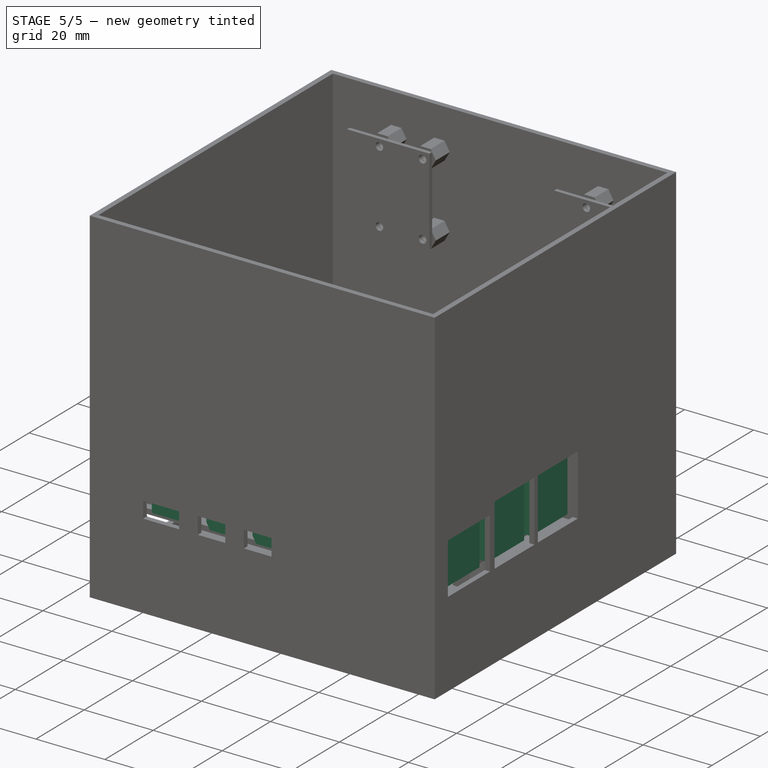
[diagram: stage 5 of 5 — iso view after this stage's code; geometry added in this stage tinted green]
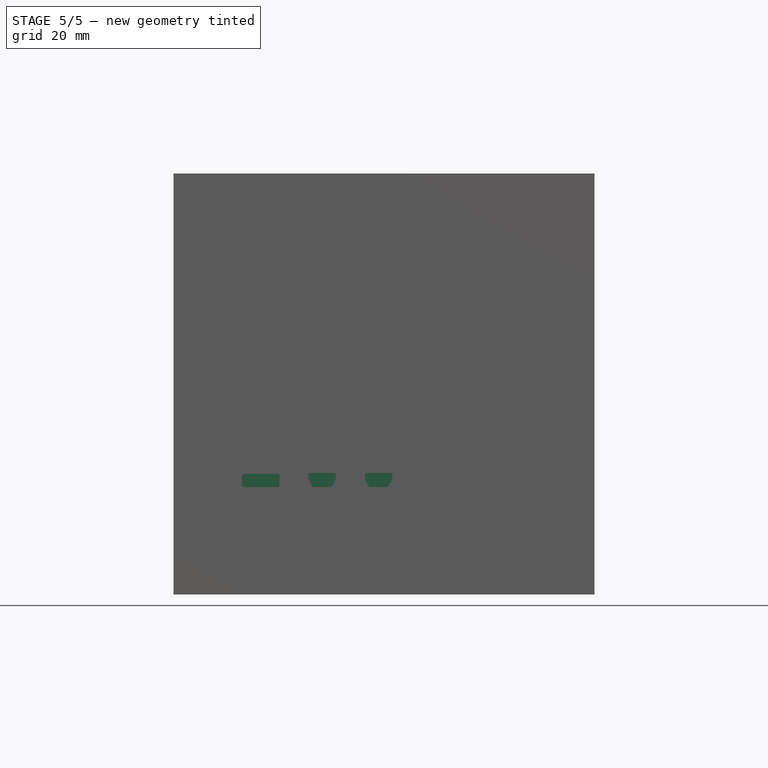
[diagram: stage 5 of 5 — front view after this stage's code; geometry added in this stage tinted green]
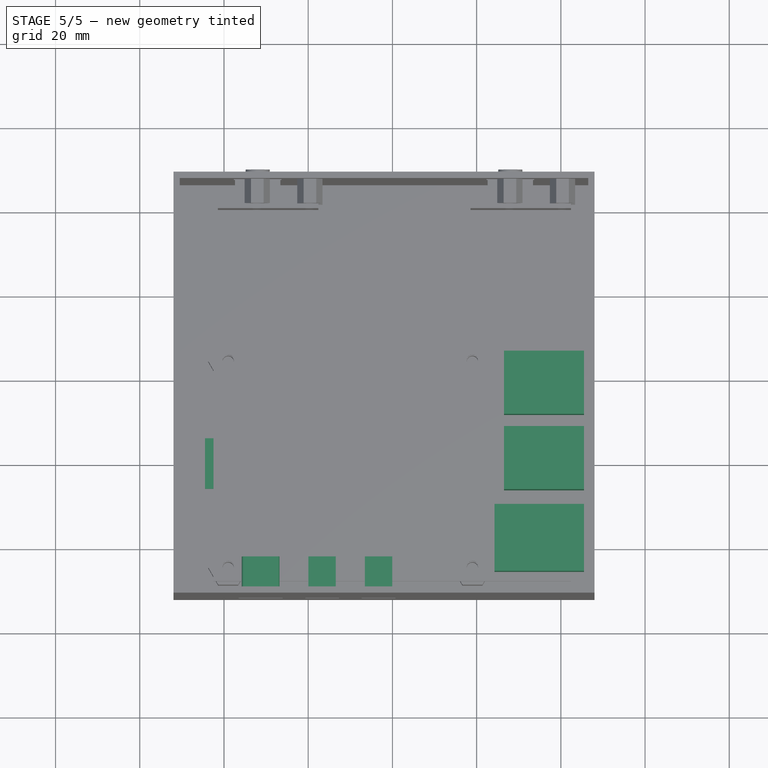
[diagram: stage 5 of 5 — top view after this stage's code; geometry added in this stage tinted green]
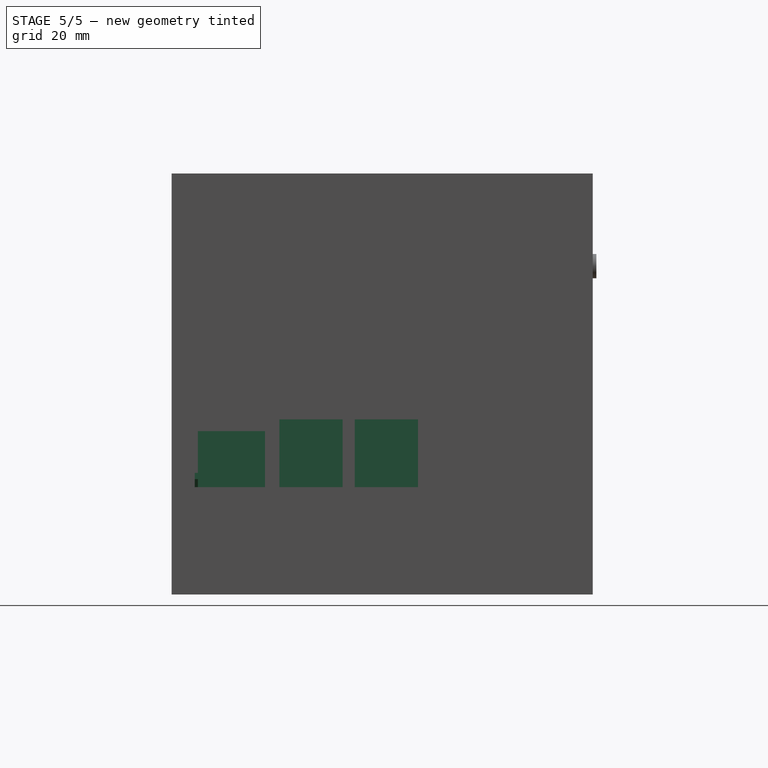
[diagram: stage 5 of 5 — right view after this stage's code; geometry added in this stage tinted green]
FEATURE [Sketcher::SketchObject] Sketch001  label="Sketch_usba"
  FullyConstrained = true
  MapMode = 5
  Support = -> [XY_Plane]
  expr: Constraints[10] = <<board>>.length
  expr: Constraints[11] = <<board>>.width
  expr: Constraints[14] = <<board>>.usba_placement1
  expr: Constraints[15] = <<board>>.usba_placement2
  expr: Constraints[24] = <<io>>.usba_length
  expr: Constraints[25] = <<io>>.usba_width
  expr: Constraints[26] = <<board>>.usba_offset
  expr: Constraints[27] = 0.5 * <<io>>.usba_width
  expr: Constraints[38] = <<board>>.usba_offset
  expr: Constraints[39] = 0.5 * <<io>>.usba_width
  sketch-geometry (15):
    g0: LineSegment StartX=-42.5 StartY=-28 StartZ=0 EndX=-42.5 EndY=28 EndZ=0
    g1: LineSegment StartX=-42.5 StartY=28 StartZ=0 EndX=42.5 EndY=28 EndZ=0
    g2: LineSegment StartX=42.5 StartY=28 StartZ=0 EndX=42.5 EndY=-28 EndZ=0
    g3: LineSegment StartX=42.5 StartY=-28 StartZ=0 EndX=-42.5 EndY=-28 EndZ=0
    g4: GeomPoint X=0 Y=0 Z=0
    g5: GeomPoint X=42.5 Y=19 Z=0
    g6: GeomPoint X=42.5 Y=1.1 Z=0
    g7: LineSegment StartX=26.5 StartY=26.5 StartZ=0 EndX=45.5 EndY=26.5 EndZ=0
    g8: LineSegment StartX=45.5 StartY=26.5 StartZ=0 EndX=45.5 EndY=11.5 EndZ=0
    g9: LineSegment StartX=45.5 StartY=11.5 StartZ=0 EndX=26.5 EndY=11.5 EndZ=0
    g10: LineSegment StartX=26.5 StartY=11.5 StartZ=0 EndX=26.5 EndY=26.5 EndZ=0
    g11: LineSegment StartX=26.5 StartY=8.6 StartZ=0 EndX=45.5 EndY=8.6 EndZ=0
    g12: LineSegment StartX=45.5 StartY=8.6 StartZ=0 EndX=45.5 EndY=-6.4 EndZ=0
    g13: LineSegment StartX=45.5 StartY=-6.4 StartZ=0 EndX=26.5 EndY=-6.4 EndZ=0
    g14: LineSegment StartX=26.5 StartY=-6.4 StartZ=0 EndX=26.5 EndY=8.6 EndZ=0
  constraints (40):
    c: Coincident(g0,g1)
    c: Coincident(g1,g2)
    c: Coincident(g2,g3)
    c: Coincident(g3,g0)
    c: Horizontal(g1)
    c: Horizontal(g3)
    c: Vertical(g0)
    c: Vertical(g2)
    c: Symmetric(g1,g0,g4)
    c: Coincident(g4,g-1)
    c: DistanceX(g1,g1) = 85
    c: DistanceY(g2,g2) = 56
    c: PointOnObject(g5,g2)
    c: PointOnObject(g6,g2)
    c: DistanceY(g2,g6) = 29.1
    c: DistanceY(g2,g5) = 47
    c: Coincident(g7,g8)
    c: Coincident(g8,g9)
    c: Coincident(g9,g10)
    c: Coincident(g10,g7)
    c: Horizontal(g7)
    c: Horizontal(g9)
    c: Vertical(g8)
    c: Vertical(g10)
    c: DistanceX(g7,g7) = 19
    c: DistanceY(g10,g10) = 15
    c: DistanceX(g5,g7) = 3
    c: DistanceY(g5,g7) = 7.5
    c: Coincident(g11,g12)
    c: Coincident(g12,g13)
    c: Coincident(g13,g14)
    c: Coincident(g14,g11)
    c: Horizontal(g11)
    c: Horizontal(g13)
    c: Vertical(g12)
    c: Vertical(g14)
    c: Equal(g9,g11)
    c: Equal(g14,g10)
    c: DistanceX(g6,g11) = 3
    c: DistanceY(g6,g11) = 7.5
FEATURE [PartDesign::Pad] Pad001  label="Pad_usba"
  BaseFeature = -> Pad
  Direction = (0,0,1)
  Length = 16.1
  Length2 = 10
  Profile = -> Sketch001
  ReferenceAxis = -> Sketch001 [N_Axis]
  Refine = true
  Type = 0
  expr: Length = <<io>>.usba_height
FEATURE [Sketcher::SketchObject] Sketch002  label="Sketch_rj45"
  FullyConstrained = true
  MapMode = 5
  Support = -> [XY_Plane]
  expr: Constraints[10] = <<board>>.length
  expr: Constraints[11] = <<board>>.width
  expr: Constraints[13] = <<board>>.rj45_placement
  expr: Constraints[22] = <<io>>.rj45_width
  expr: Constraints[23] = <<io>>.rj45_length
  expr: Constraints[24] = <<board>>.usba_offset
  expr: Constraints[25] = 0.5 * <<io>>.rj45_width
  sketch-geometry (10):
    g0: LineSegment StartX=42.5 StartY=-28 StartZ=0 EndX=42.5 EndY=28 EndZ=0
    g1: LineSegment StartX=42.5 StartY=28 StartZ=0 EndX=-42.5 EndY=28 EndZ=0
    g2: LineSegment StartX=-42.5 StartY=28 StartZ=0 EndX=-42.5 EndY=-28 EndZ=0
    g3: LineSegment StartX=-42.5 StartY=-28 StartZ=0 EndX=42.5 EndY=-28 EndZ=0
    g4: GeomPoint X=0 Y=0 Z=0
    g5: GeomPoint X=42.5 Y=-17.8 Z=0
    g6: LineSegment StartX=24.25 StartY=-9.835 StartZ=0 EndX=45.5 EndY=-9.835 EndZ=0
    g7: LineSegment StartX=45.5 StartY=-9.835 StartZ=0 EndX=45.5 EndY=-25.765 EndZ=0
    g8: LineSegment StartX=45.5 StartY=-25.765 StartZ=0 EndX=24.25 EndY=-25.765 EndZ=0
    g9: LineSegment StartX=24.25 StartY=-25.765 StartZ=0 EndX=24.25 EndY=-9.835 EndZ=0
  constraints (26):
    c: Coincident(g0,g1)
    c: Coincident(g1,g2)
    c: Coincident(g2,g3)
    c: Coincident(g3,g0)
    c: Horizontal(g1)
    c: Horizontal(g3)
    c: Vertical(g0)
    c: Vertical(g2)
    c: Symmetric(g1,g0,g4)
    c: Coincident(g4,g-1)
    c: DistanceX(g1,g1) = 85
    c: DistanceY(g2,g2) = 56
    c: PointOnObject(g5,g0)
    c: DistanceY(g0,g5) = 10.2
    c: Coincident(g6,g7)
    c: Coincident(g7,g8)
    c: Coincident(g8,g9)
    c: Coincident(g9,g6)
    c: Horizontal(g6)
    c: Horizontal(g8)
    c: Vertical(g7)
    c: Vertical(g9)
    c: DistanceY(g7,g7) = 15.93
    c: DistanceX(g6,g6) = 21.25
    c: DistanceX(g5,g6) = 3
    c: DistanceY(g5,g6) = 7.965
FEATURE [PartDesign::Pad] Pad002  label="Pad_rj45"
  BaseFeature = -> Pad001
  Direction = (0,0,1)
  Length = 13.3
  Length2 = 10
  Profile = -> Sketch002
  ReferenceAxis = -> Sketch002 [N_Axis]
  Refine = true
  Type = 0
  expr: Length = <<io>>.rj45_height
FEATURE [PartDesign::Plane] DatumPlane  label="Plane_usb_hdmi"
  AttachmentOffset = pos=(0,0,29.5) rot=(0,0,1;0rad)
  Length = 103.416
  MapMode = 5
  Placement = pos=(0,-29.5,-6.6e-15) rot=(1,0,0;1.5708rad)
  ResizeMode = 0
  Support = -> [XZ_Plane]
  Width = 63.4164
  expr: .AttachmentOffset.Base.y = 0
  expr: .AttachmentOffset.Base.z = 0.5 * <<board>>.width + <<board>>.usbc_offset
FEATURE [Sketcher::SketchObject] Sketch003  label="Sketch_usb_hdmi"
  FullyConstrained = true
  MapMode = 5
  Placement = pos=(0,-29.5,-6.6e-15) rot=(1,0,0;1.5708rad)
  Support = -> [DatumPlane]
  expr: Constraints[28] = <<io>>.usbc_rad
  expr: Constraints[29] = <<io>>.usbc_width - 2 * <<io>>.usbc_rad
  expr: Constraints[2] = <<board>>.length
  expr: Constraints[30] = <<io>>.usbc_height - 2 * <<io>>.usbc_rad
  expr: Constraints[42] = <<io>>.hdmi_width
  expr: Constraints[43] = <<io>>.hdmi_smlwidth
  expr: Constraints[45] = <<io>>.hdmi_height - <<io>>.hdmi_taperheight
  expr: Constraints[46] = <<io>>.hdmi_taperheight
  expr: Constraints[47] = 0.5 * (<<io>>.hdmi_width - <<io>>.hdmi_smlwidth)
  expr: Constraints[6] = <<board>>.usbc_placement
  expr: Constraints[7] = <<board>>.hdmi_placement1
  expr: Constraints[8] = <<board>>.hdmi_placement2
  sketch-geometry (26):
    g0: LineSegment StartX=-42.5 StartY=0 StartZ=0 EndX=42.5 EndY=0 EndZ=0
    g1: GeomPoint X=-31.3 Y=0 Z=0
    g2: GeomPoint X=-16.7 Y=0 Z=0
    g3: GeomPoint X=-3.3 Y=0 Z=0
    g4: ArcOfCircle CenterX=-35.27 CenterY=2.7 CenterZ=0 NormalX=0 NormalY=0 NormalZ=1 AngleXU=0 Radius=0.5 StartAngle=1.5708 EndAngle=3.14159
    g5: LineSegment StartX=-35.27 StartY=3.2 StartZ=0 EndX=-27.33 EndY=3.2 EndZ=0
    g6: ArcOfCircle CenterX=-27.33 CenterY=2.7 CenterZ=0 NormalX=0 NormalY=0 NormalZ=1 AngleXU=0 Radius=0.5 StartAngle=4e-16 EndAngle=1.5708
    g7: LineSegment StartX=-26.83 StartY=2.7 StartZ=0 EndX=-26.83 EndY=0.5 EndZ=0
    g8: ArcOfCircle CenterX=-27.33 CenterY=0.5 CenterZ=0 NormalX=0 NormalY=0 NormalZ=1 AngleXU=0 Radius=0.5 StartAngle=4.71239 EndAngle=6.28319
    g9: LineSegment StartX=-27.33 StartY=0 StartZ=0 EndX=-35.27 EndY=0 EndZ=0
    g10: ArcOfCircle CenterX=-35.27 CenterY=0.5 CenterZ=0 NormalX=0 NormalY=0 NormalZ=1 AngleXU=0 Radius=0.5 StartAngle=3.14159 EndAngle=4.71239
    g11: LineSegment StartX=-35.77 StartY=0.5 StartZ=0 EndX=-35.77 EndY=2.7 EndZ=0
    g12: GeomPoint X=-35.77 Y=3.2 Z=0
    g13: GeomPoint X=-26.83 Y=0 Z=0
    g14: LineSegment StartX=-18.92 StartY=0 StartZ=0 EndX=-14.48 EndY=0 EndZ=0
    g15: LineSegment StartX=-14.48 StartY=0 StartZ=0 EndX=-13.45 EndY=1.9 EndZ=0
    g16: LineSegment StartX=-13.45 StartY=1.9 StartZ=0 EndX=-13.45 EndY=3.4 EndZ=0
    g17: LineSegment StartX=-13.45 StartY=3.4 StartZ=0 EndX=-19.95 EndY=3.4 EndZ=0
    g18: LineSegment StartX=-19.95 StartY=3.4 StartZ=0 EndX=-19.95 EndY=1.9 EndZ=0
    g19: LineSegment StartX=-19.95 StartY=1.9 StartZ=0 EndX=-18.92 EndY=0 EndZ=0
    g20: LineSegment StartX=-0.05 StartY=3.4 StartZ=0 EndX=-6.55 EndY=3.4 EndZ=0
    g21: LineSegment StartX=-6.55 StartY=3.4 StartZ=0 EndX=-6.55 EndY=1.9 EndZ=0
    g22: LineSegment StartX=-6.55 StartY=1.9 StartZ=0 EndX=-5.52 EndY=0 EndZ=0
    g23: LineSegment StartX=-5.52 StartY=0 StartZ=0 EndX=-1.08 EndY=0 EndZ=0
    g24: LineSegment StartX=-1.08 StartY=0 StartZ=0 EndX=-0.05 EndY=1.9 EndZ=0
    g25: LineSegment StartX=-0.05 StartY=1.9 StartZ=0 EndX=-0.05 EndY=3.4 EndZ=0
  constraints (66):
    c: PointOnObject(g0,g-1)
    c: Symmetric(g0,g0,g-1)
    c: DistanceX(g0,g0) = 85
    c: PointOnObject(g1,g0)
    c: PointOnObject(g2,g0)
    c: PointOnObject(g3,g0)
    c: DistanceX(g0,g1) = 11.2
    c: DistanceX(g0,g2) = 25.8
    c: DistanceX(g0,g3) = 39.2
    c: Tangent(g4,g5) = 1.5708
    c: Tangent(g5,g6) = 1.5708
    c: Tangent(g6,g7) = 1.5708
    c: Tangent(g7,g8) = 1.5708
    c: Tangent(g8,g9) = 1.5708
    c: Tangent(g9,g10) = 1.5708
    c: Tangent(g10,g11) = 1.5708
    c: Tangent(g11,g4) = 1.5708
    c: Horizontal(g5)
    c: Horizontal(g9)
    c: Vertical(g7)
    c: Vertical(g11)
    c: Equal(g4,g6)
    c: Equal(g6,g8)
    c: Equal(g8,g10)
    c: PointOnObject(g12,g5)
    c: PointOnObject(g12,g11)
    c: PointOnObject(g13,g7)
    c: PointOnObject(g13,g9)
    c: Radius(g6) = 0.5
    c: DistanceX(g5,g5) = 7.94
    c: DistanceY(g7,g7) = 2.2
    c: Symmetric(g9,g8,g1)
    c: PointOnObject(g14,g0)
    c: Coincident(g14,g15)
    c: Coincident(g15,g16)
    c: Vertical(g16)
    c: Coincident(g16,g17)
    c: Horizontal(g17)
    c: Coincident(g17,g18)
    c: Vertical(g18)
    c: Coincident(g18,g19)
    c: Coincident(g19,g14)
    c: DistanceX(g17,g17) = 6.5
    c: DistanceX(g14,g14) = 4.44
    c: Horizontal(g18,g15)
    c: DistanceY(g18,g18) = 1.5
    c: DistanceY(g14,g18) = 1.9
    c: DistanceX(g17,g14) = 1.03
    c: Symmetric(g14,g14,g2)
    c: Coincident(g23,g24)
    c: Coincident(g24,g25)
    c: Vertical(g25)
    c: Coincident(g25,g20)
    c: Horizontal(g20)
    c: Coincident(g20,g21)
    c: Vertical(g21)
    c: Coincident(g21,g22)
    c: Coincident(g22,g23)
    c: Equal(g17,g20) = 6.5
    c: Equal(g14,g23) = 4.44
    c: Horizontal(g21,g24)
    c: Equal(g18,g21) = 1.5
    c: DistanceY(g23,g21) = 1.9
    c: DistanceX(g20,g23) = 1.03
    c: Symmetric(g23,g22,g3)
    c: Horizontal(g23)
FEATURE [PartDesign::Pad] Pad003  label="Pad_usb_hdmi"
  BaseFeature = -> Pad002
  Direction = (0,-1,-2e-16)
  Length = 7.35
  Length2 = 10
  Profile = -> Sketch003
  ReferenceAxis = -> Sketch003 [N_Axis]
  Refine = true
  Reversed = true
  Type = 0
  expr: Length = <<io>>.usbc_length
FEATURE [PartDesign::Plane] DatumPlane001  label="Plane_sd"
  AttachmentOffset = pos=(0,0,-44.5) rot=(0,0,1;0rad)
  Length = 68.2238
  MapMode = 5
  Placement = pos=(-44.5,9.9e-15,-9.9e-15) rot=(0.57735,0.57735,0.57735;2.0944rad)
  ResizeMode = 0
  Support = -> [YZ_Plane]
  Width = 60.7238
  expr: .AttachmentOffset.Base.z = -(0.5 * <<board>>.length + <<board>>.sd_offset)
FEATURE [Sketcher::SketchObject] Sketch004  label="Sketch_sd"
  FullyConstrained = true
  MapMode = 5
  Placement = pos=(-44.5,9.9e-15,-9.9e-15) rot=(0.57735,0.57735,0.57735;2.0944rad)
  Support = -> [DatumPlane001]
  expr: Constraints[0] = <<board>>.height
  expr: Constraints[11] = <<io>>.sd_width
  expr: Constraints[12] = <<io>>.sd_height
  expr: Constraints[2] = <<board>>.width
  sketch-geometry (5):
    g0: LineSegment StartX=-28 StartY=-1.5 StartZ=0 EndX=28 EndY=-1.5 EndZ=0
    g1: LineSegment StartX=-6 StartY=-1.5 StartZ=0 EndX=6 EndY=-1.5 EndZ=0
    g2: LineSegment StartX=6 StartY=-1.5 StartZ=0 EndX=6 EndY=-3 EndZ=0
    g3: LineSegment StartX=6 StartY=-3 StartZ=0 EndX=-6 EndY=-3 EndZ=0
    g4: LineSegment StartX=-6 StartY=-3 StartZ=0 EndX=-6 EndY=-1.5 EndZ=0
  constraints (14):
    c: DistanceY(g0,g-1) = 1.5
    c: Symmetric(g0,g0,g-2)
    c: DistanceX(g0,g0) = 56
    c: Coincident(g1,g2)
    c: Coincident(g2,g3)
    c: Coincident(g3,g4)
    c: Coincident(g4,g1)
    c: Horizontal(g3)
    c: Vertical(g2)
    c: Vertical(g4)
    c: Symmetric(g1,g1,g-2)
    c: DistanceX(g1,g1) = 12
    c: DistanceY(g4,g4) = 1.5
    c: PointOnObject(g1,g0)
FEATURE [PartDesign::Pad] Pad004
  BaseFeature = -> Pad003
  Direction = (1,-1e-16,1e-16)
  Length = 16
  Length2 = 10
  Profile = -> Sketch004
  ReferenceAxis = -> Sketch004 [N_Axis]
  Refine = true
  Type = 0
  expr: Length = <<io>>.sd_length
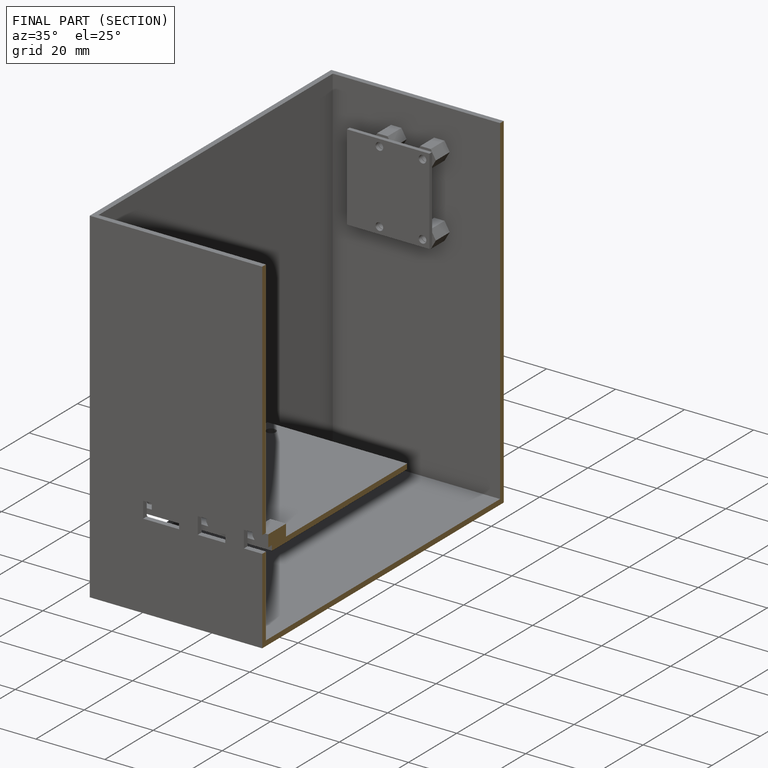
[diagram: finished part — half-section view (interior)]
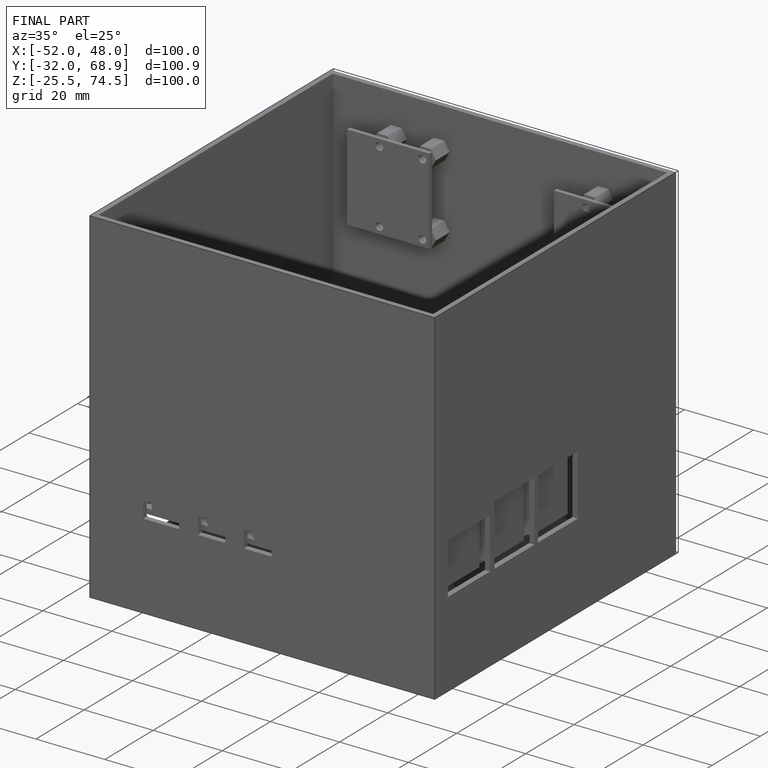
[diagram: finished part — iso view with bounding-box wireframe]
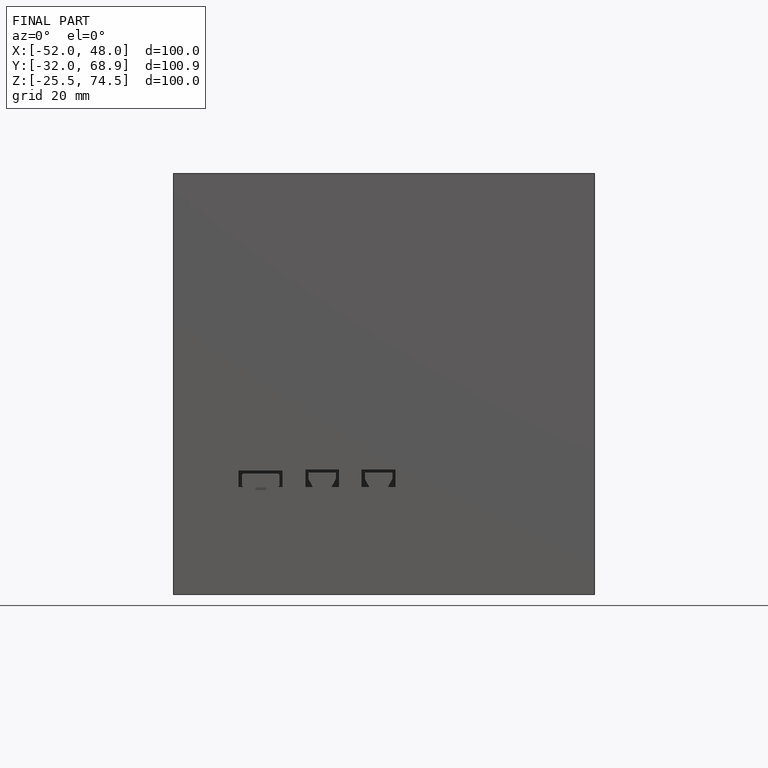
[diagram: finished part — front view with bounding-box wireframe]
